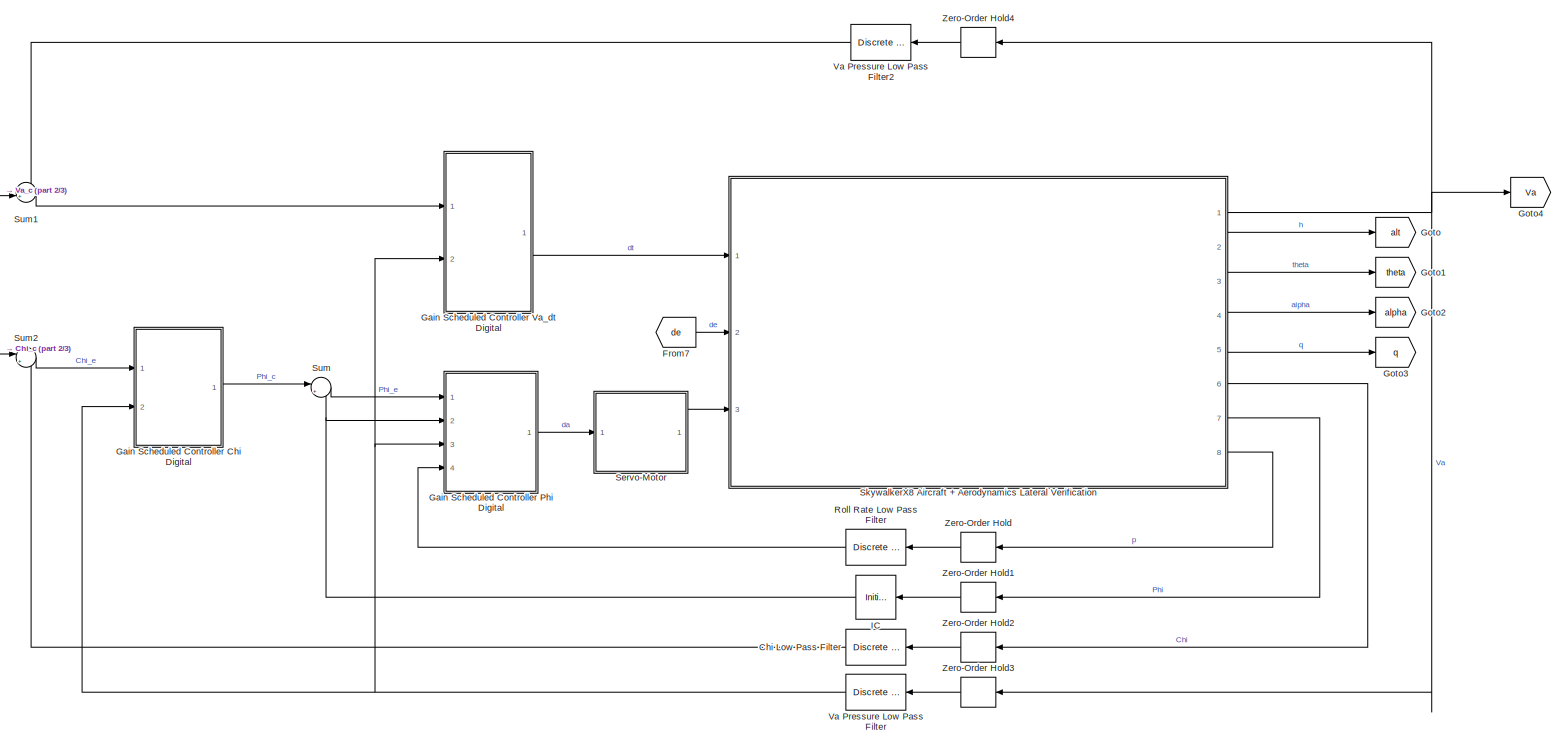
[diagram: root canvas - part 1/3, most of the canvas]
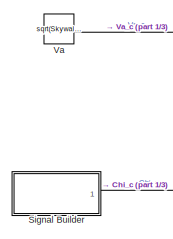
[diagram: root canvas - part 2/3, top left region]
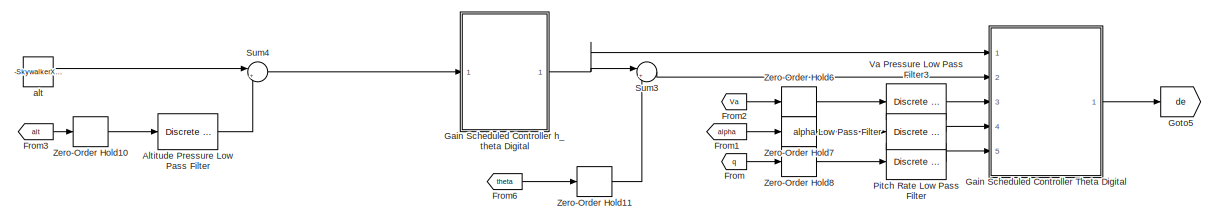
[diagram: root canvas - part 3/3, bottom center region]
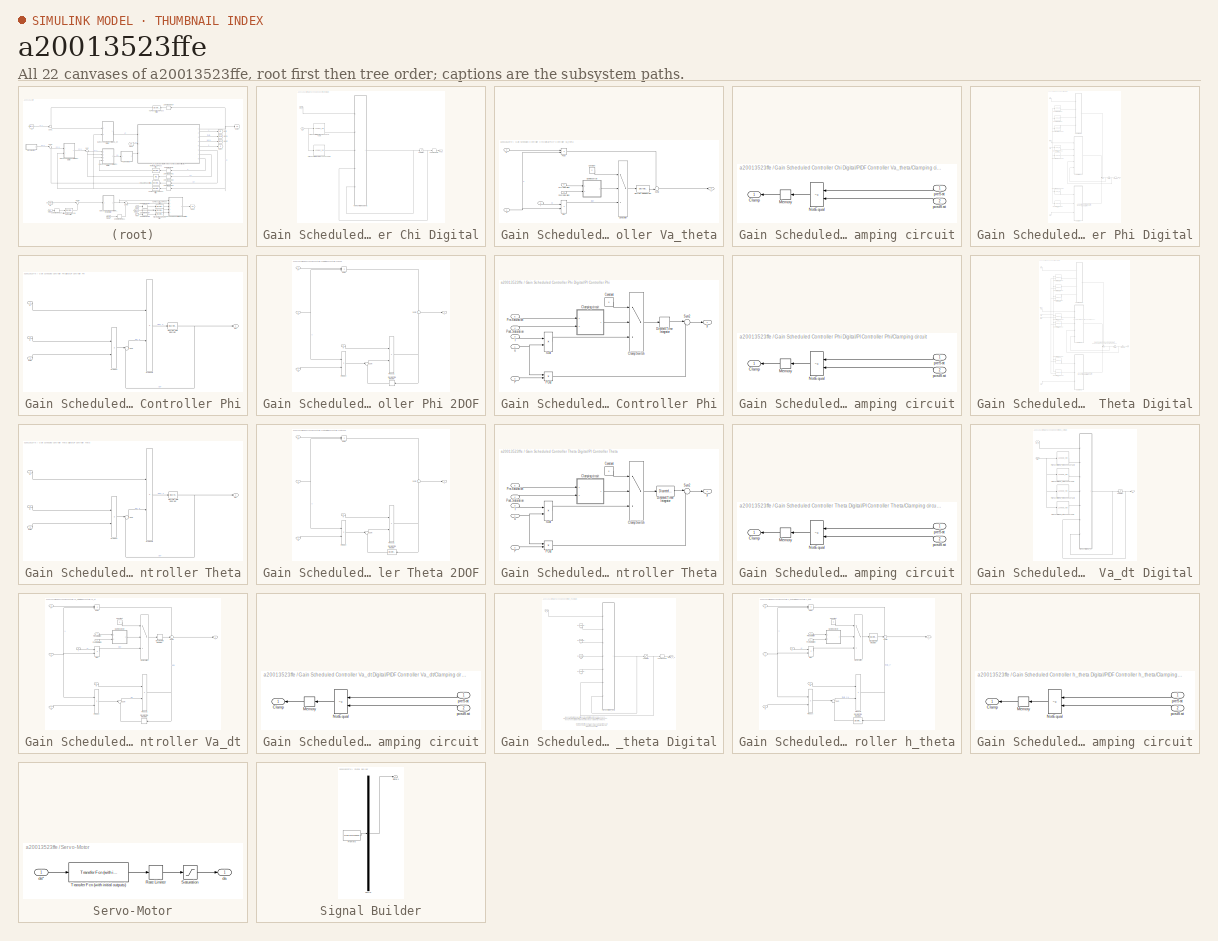
[diagram: thumbnail index - all 22 canvases of the model, root first then tree order]
MODEL slx_a20013523ffe
KIND model
CONFIG AbsTol = auto
CONFIG EnableMultiTasking = off
CONFIG FixedStep = 0.001
CONFIG MaxStep = auto
CONFIG MinStep = auto
CONFIG RelTol = 1e-3
CONFIG SampleTimeConstraint = Unconstrained
CONFIG Solver = FixedStepAuto
CONFIG SolverName = FixedStepAuto
CONFIG StartTime = 0.0
CONFIG StopTime = 30
BLOCK [Reference] Altitude Pressure Low Pass Filter  REF=simulink_extras/Additional
Discrete/Discrete
Transfer Fcn
(with initial outputs)
  Ports = [1, 1]
  SourceBlock = simulink_extras/Additional\nDiscrete/Discrete\nTransfer Fcn\n(with initial outputs)
  SourceProductBaseCode = SL
  SourceProductName = Simulink
  SourceType = Discrete Transfer Function with Initial Outputs
BLOCK [Reference] Chi Low Pass Filter  REF=simulink_extras/Additional
Discrete/Discrete
Transfer Fcn
(with initial outputs)
  Ports = [1, 1]
  SourceBlock = simulink_extras/Additional\nDiscrete/Discrete\nTransfer Fcn\n(with initial outputs)
  SourceProductBaseCode = SL
  SourceProductName = Simulink
  SourceType = Discrete Transfer Function with Initial Outputs
BLOCK [From] From
  GotoTag = q
BLOCK [From] From1
  GotoTag = alpha
BLOCK [From] From2
  GotoTag = Va
BLOCK [From] From3
  GotoTag = alt
BLOCK [From] From6
  GotoTag = theta
BLOCK [From] From7
  GotoTag = de
BLOCK [SubSystem] Gain Scheduled Controller Chi Digital
  Ports = [2, 1]
  RequestExecContextInheritance = off
BLOCK [Inport] Gain Scheduled Controller Chi Digital/Chi_e
  IconDisplay = Port number
BLOCK [Lookup_n-D] Gain Scheduled Controller Chi Digital/PIDF Controller Chi Ki 2D Lookup Table
  BreakpointsForDimension1 = SkywalkerX8.Control.Lateral.SchedulingVariables.VaArray
  BreakpointsForDimension2 = SkywalkerX8.Control.Longitudinal.SchedulingVariables.alphaArray
  InternalRulePriority = Speed
  NumberOfTableDimensions = 1
  Ports = [1, 1]
  RndMeth = Simplest
  Table = SkywalkerX8.Control.Lateral.ChiController.Digital.KiChi
BLOCK [Lookup_n-D] Gain Scheduled Controller Chi Digital/PIDF Controller Chi Kp 2D Lookup Table
  BreakpointsForDimension1 = SkywalkerX8.Control.Lateral.SchedulingVariables.VaArray
  BreakpointsForDimension2 = SkywalkerX8.Control.Longitudinal.SchedulingVariables.alphaArray
  InternalRulePriority = Speed
  NumberOfTableDimensions = 1
  Ports = [1, 1]
  RndMeth = Simplest
  Table = SkywalkerX8.Control.Lateral.ChiController.Digital.KpChi
BLOCK [SubSystem] Gain Scheduled Controller Chi Digital/PIDF Controller Va_theta
  Ports = [5, 1]
  RequestExecContextInheritance = off
BLOCK [Switch] Gain Scheduled Controller Chi Digital/PIDF Controller Va_theta/Clamp Switch
  Criteria = u2 ~= 0
  InputSameDT = off
  SaturateOnIntegerOverflow = off
BLOCK [SubSystem] Gain Scheduled Controller Chi Digital/PIDF Controller Va_theta/Clamping circuit
  Ports = [2, 1]
  RequestExecContextInheritance = off
BLOCK [Outport] Gain Scheduled Controller Chi Digital/PIDF Controller Va_theta/Clamping circuit/Clamp
  DisableCoverage = on
  IconDisplay = Port number
BLOCK [Memory] Gain Scheduled Controller Chi Digital/PIDF Controller Va_theta/Clamping circuit/Memory
  DisableCoverage = on
BLOCK [RelationalOperator] Gain Scheduled Controller Chi Digital/PIDF Controller Va_theta/Clamping circuit/NotEqual
  DisableCoverage = on
  Operator = ~=
  Ports = [2, 1]
BLOCK [Inport] Gain Scheduled Controller Chi Digital/PIDF Controller Va_theta/Clamping circuit/postSat
  DisableCoverage = on
  IconDisplay = Port number
  Port = 2
BLOCK [Inport] Gain Scheduled Controller Chi Digital/PIDF Controller Va_theta/Clamping circuit/preSat
  DisableCoverage = on
  IconDisplay = Port number
BLOCK [Constant] Gain Scheduled Controller Chi Digital/PIDF Controller Va_theta/Constant
  Value = 0
BLOCK [DiscreteIntegrator] Gain Scheduled Controller Chi Digital/PIDF Controller Va_theta/Discrete-Time Integrator
  ICPrevOutput = DiscIntNeverNeededParam
  ICPrevScaledInput = DiscIntNeverNeededParam
  InitialCondition = SkywalkerX8.InitialConditions.PhiThetaPsi(1)
  InitialConditionSetting = Auto
  IntegratorMethod = Integration: Trapezoidal
  Ports = [1, 1]
  SampleTime = SkywalkerX8.Control.Lateral.ChiController.Digital.SampleTime
BLOCK [Inport] Gain Scheduled Controller Chi Digital/PIDF Controller Va_theta/I
  IconDisplay = Port number
  Port = 3
BLOCK [Product] Gain Scheduled Controller Chi Digital/PIDF Controller Va_theta/IOut
  DisableCoverage = on
  InputSameDT = off
  OutDataTypeStr = Inherit: Inherit via internal rule
  Ports = [2, 1]
  RndMeth = Floor
  SaturateOnIntegerOverflow = off
BLOCK [Inport] Gain Scheduled Controller Chi Digital/PIDF Controller Va_theta/P
  IconDisplay = Port number
  Port = 2
BLOCK [Product] Gain Scheduled Controller Chi Digital/PIDF Controller Va_theta/POut
  InputSameDT = off
  OutDataTypeStr = Inherit: Inherit via internal rule
  Ports = [2, 1]
  RndMeth = Floor
  SaturateOnIntegerOverflow = off
BLOCK [Inport] Gain Scheduled Controller Chi Digital/PIDF Controller Va_theta/Post-Saturation
  IconDisplay = Port number
  Port = 4
BLOCK [Inport] Gain Scheduled Controller Chi Digital/PIDF Controller Va_theta/Pre-Saturation
  IconDisplay = Port number
  Port = 5
BLOCK [Sum] Gain Scheduled Controller Chi Digital/PIDF Controller Va_theta/Sum2
  IconShape = round
  InputSameDT = off
  Inputs = ++|
  OutDataTypeStr = Inherit: Inherit via internal rule
  Ports = [2, 1]
  SaturateOnIntegerOverflow = off
BLOCK [Inport] Gain Scheduled Controller Chi Digital/PIDF Controller Va_theta/u
  IconDisplay = Port number
BLOCK [Outport] Gain Scheduled Controller Chi Digital/PIDF Controller Va_theta/y
  IconDisplay = Port number
  InitialOutput = 0
BLOCK [Outport] Gain Scheduled Controller Chi Digital/Phi_c
  IconDisplay = Port number
BLOCK [Saturate] Gain Scheduled Controller Chi Digital/Saturation
  InputPortMap = u0
  LowerLimit = SkywalkerX8.Control.Lateral.ChiController.lowerSaturationPhiC
  Ports = [1, 1]
  UpperLimit = SkywalkerX8.Control.Lateral.ChiController.upperSaturationPhiC
BLOCK [Inport] Gain Scheduled Controller Chi Digital/Va
  IconDisplay = Port number
  Port = 2
BLOCK [ZeroOrderHold] Gain Scheduled Controller Chi Digital/Zero-Order Hold
  SampleTime = SkywalkerX8.Control.Lateral.ChiController.Digital.SampleTime
BLOCK [SubSystem] Gain Scheduled Controller Phi Digital
  Ports = [4, 1]
  RequestExecContextInheritance = off
BLOCK [SubSystem] Gain Scheduled Controller Phi Digital/DF Controller Phi
  Ports = [3, 1]
  RequestExecContextInheritance = off
BLOCK [Inport] Gain Scheduled Controller Phi Digital/DF Controller Phi/D
  IconDisplay = Port number
  Port = 2
BLOCK [DiscreteIntegrator] Gain Scheduled Controller Phi Digital/DF Controller Phi/Discrete-Time Integrator
  ICPrevOutput = DiscIntNeverNeededParam
  ICPrevScaledInput = DiscIntNeverNeededParam
  InitialConditionSetting = Auto
  IntegratorMethod = Integration: Trapezoidal
  Ports = [1, 1]
  SampleTime = SkywalkerX8.Control.Lateral.PhiController.Digital.SampleTime
BLOCK [Inport] Gain Scheduled Controller Phi Digital/DF Controller Phi/N
  IconDisplay = Port number
BLOCK [Product] Gain Scheduled Controller Phi Digital/DF Controller Phi/Product
  InputSameDT = off
  OutDataTypeStr = Inherit: Inherit via internal rule
  Ports = [2, 1]
  RndMeth = Floor
  SaturateOnIntegerOverflow = off
BLOCK [Product] Gain Scheduled Controller Phi Digital/DF Controller Phi/Product1
  InputSameDT = off
  OutDataTypeStr = Inherit: Inherit via internal rule
  Ports = [2, 1]
  RndMeth = Floor
  SaturateOnIntegerOverflow = off
BLOCK [Sum] Gain Scheduled Controller Phi Digital/DF Controller Phi/Sum
  IconShape = round
  InputSameDT = off
  Inputs = |+-
  OutDataTypeStr = Inherit: Inherit via internal rule
  Ports = [2, 1]
  SaturateOnIntegerOverflow = off
BLOCK [Outport] Gain Scheduled Controller Phi Digital/DF Controller Phi/da*
  IconDisplay = Port number
BLOCK [Inport] Gain Scheduled Controller Phi Digital/DF Controller Phi/du//dt
  IconDisplay = Port number
  Port = 3
BLOCK [SubSystem] Gain Scheduled Controller Phi Digital/PDF Controller Phi 2DOF
  Ports = [4, 1]
  RequestExecContextInheritance = off
BLOCK [Lookup_n-D] Gain Scheduled Controller Phi Digital/PDF Controller Phi 2DOF Kd 2D Lookup Table
  BreakpointsForDimension1 = SkywalkerX8.Control.Lateral.SchedulingVariables.VaArray
  BreakpointsForDimension2 = SkywalkerX8.Control.Longitudinal.SchedulingVariables.alphaArray
  InternalRulePriority = Speed
  NumberOfTableDimensions = 1
  Ports = [1, 1]
  RndMeth = Simplest
  Table = SkywalkerX8.Control.Lateral.PhiController.Digital.KdPhi2DOF
BLOCK [Lookup_n-D] Gain Scheduled Controller Phi Digital/PDF Controller Phi 2DOF Kp 2D Lookup Table
  BreakpointsForDimension1 = SkywalkerX8.Control.Lateral.SchedulingVariables.VaArray
  BreakpointsForDimension2 = SkywalkerX8.Control.Longitudinal.SchedulingVariables.alphaArray
  InternalRulePriority = Speed
  NumberOfTableDimensions = 1
  Ports = [1, 1]
  RndMeth = Simplest
  Table = SkywalkerX8.Control.Lateral.PhiController.Digital.KpPhi2DOF
BLOCK [Lookup_n-D] Gain Scheduled Controller Phi Digital/PDF Controller Phi 2DOF N 2D Lookup Table
  BreakpointsForDimension1 = SkywalkerX8.Control.Lateral.SchedulingVariables.VaArray
  BreakpointsForDimension2 = SkywalkerX8.Control.Longitudinal.SchedulingVariables.alphaArray
  InternalRulePriority = Speed
  NumberOfTableDimensions = 1
  Ports = [1, 1]
  RndMeth = Simplest
  Table = SkywalkerX8.Control.Lateral.PhiController.Digital.NPhi2DOF
BLOCK [Inport] Gain Scheduled Controller Phi Digital/PDF Controller Phi 2DOF/D
  IconDisplay = Port number
  Port = 3
BLOCK [DiscreteIntegrator] Gain Scheduled Controller Phi Digital/PDF Controller Phi 2DOF/Discrete-Time Integrator
  ICPrevOutput = DiscIntNeverNeededParam
  ICPrevScaledInput = DiscIntNeverNeededParam
  InitialConditionSetting = Auto
  Ports = [1, 1]
  SampleTime = SkywalkerX8.Control.Lateral.PhiController.Digital.SampleTime
BLOCK [Inport] Gain Scheduled Controller Phi Digital/PDF Controller Phi 2DOF/N
  IconDisplay = Port number
  Port = 4
BLOCK [Inport] Gain Scheduled Controller Phi Digital/PDF Controller Phi 2DOF/P
  IconDisplay = Port number
  Port = 2
BLOCK [Product] Gain Scheduled Controller Phi Digital/PDF Controller Phi 2DOF/POut
  InputSameDT = off
  OutDataTypeStr = Inherit: Inherit via internal rule
  Ports = [2, 1]
  RndMeth = Floor
  SaturateOnIntegerOverflow = off
BLOCK [Product] Gain Scheduled Controller Phi Digital/PDF Controller Phi 2DOF/Product
  InputSameDT = off
  OutDataTypeStr = Inherit: Inherit via internal rule
  Ports = [2, 1]
  RndMeth = Floor
  SaturateOnIntegerOverflow = off
BLOCK [Product] Gain Scheduled Controller Phi Digital/PDF Controller Phi 2DOF/Product1
  InputSameDT = off
  OutDataTypeStr = Inherit: Inherit via internal rule
  Ports = [2, 1]
  RndMeth = Floor
  SaturateOnIntegerOverflow = off
BLOCK [Sum] Gain Scheduled Controller Phi Digital/PDF Controller Phi 2DOF/Sum
  IconShape = round
  InputSameDT = off
  Inputs = |+-
  OutDataTypeStr = Inherit: Inherit via internal rule
  Ports = [2, 1]
  SaturateOnIntegerOverflow = off
BLOCK [Sum] Gain Scheduled Controller Phi Digital/PDF Controller Phi 2DOF/Sum2
  IconShape = round
  InputSameDT = off
  OutDataTypeStr = Inherit: Inherit via internal rule
  Ports = [2, 1]
  SaturateOnIntegerOverflow = off
BLOCK [Inport] Gain Scheduled Controller Phi Digital/PDF Controller Phi 2DOF/u
  IconDisplay = Port number
BLOCK [Outport] Gain Scheduled Controller Phi Digital/PDF Controller Phi 2DOF/y
  IconDisplay = Port number
  InitialOutput = 0
BLOCK [SubSystem] Gain Scheduled Controller Phi Digital/PI Controller Phi
  Ports = [5, 1]
  RequestExecContextInheritance = off
BLOCK [Switch] Gain Scheduled Controller Phi Digital/PI Controller Phi/Clamp Switch
  Criteria = u2 ~= 0
  InputSameDT = off
  SaturateOnIntegerOverflow = off
BLOCK [SubSystem] Gain Scheduled Controller Phi Digital/PI Controller Phi/Clamping circuit
  Ports = [2, 1]
  RequestExecContextInheritance = off
BLOCK [Outport] Gain Scheduled Controller Phi Digital/PI Controller Phi/Clamping circuit/Clamp
  DisableCoverage = on
  IconDisplay = Port number
BLOCK [Memory] Gain Scheduled Controller Phi Digital/PI Controller Phi/Clamping circuit/Memory
  DisableCoverage = on
BLOCK [RelationalOperator] Gain Scheduled Controller Phi Digital/PI Controller Phi/Clamping circuit/NotEqual
  DisableCoverage = on
  Operator = ~=
  Ports = [2, 1]
BLOCK [Inport] Gain Scheduled Controller Phi Digital/PI Controller Phi/Clamping circuit/postSat
  DisableCoverage = on
  IconDisplay = Port number
  Port = 2
BLOCK [Inport] Gain Scheduled Controller Phi Digital/PI Controller Phi/Clamping circuit/preSat
  DisableCoverage = on
  IconDisplay = Port number
BLOCK [Constant] Gain Scheduled Controller Phi Digital/PI Controller Phi/Constant
  Value = 0
BLOCK [DiscreteIntegrator] Gain Scheduled Controller Phi Digital/PI Controller Phi/Discrete-Time Integrator
  ICPrevOutput = DiscIntNeverNeededParam
  ICPrevScaledInput = DiscIntNeverNeededParam
  InitialCondition = SkywalkerX8.InitialConditions.da
  InitialConditionSetting = Auto
  IntegratorMethod = Integration: Trapezoidal
  Ports = [1, 1]
  SampleTime = SkywalkerX8.Control.Lateral.PhiController.Digital.SampleTime
BLOCK [Inport] Gain Scheduled Controller Phi Digital/PI Controller Phi/I
  IconDisplay = Port number
  Port = 3
BLOCK [Product] Gain Scheduled Controller Phi Digital/PI Controller Phi/IOut
  DisableCoverage = on
  InputSameDT = off
  OutDataTypeStr = Inherit: Inherit via internal rule
  Ports = [2, 1]
  RndMeth = Floor
  SaturateOnIntegerOverflow = off
BLOCK [Inport] Gain Scheduled Controller Phi Digital/PI Controller Phi/P
  IconDisplay = Port number
  Port = 2
BLOCK [Product] Gain Scheduled Controller Phi Digital/PI Controller Phi/POut
  InputSameDT = off
  OutDataTypeStr = Inherit: Inherit via internal rule
  Ports = [2, 1]
  RndMeth = Floor
  SaturateOnIntegerOverflow = off
BLOCK [Inport] Gain Scheduled Controller Phi Digital/PI Controller Phi/Post-Saturation
  IconDisplay = Port number
  Port = 4
BLOCK [Inport] Gain Scheduled Controller Phi Digital/PI Controller Phi/Pre-Saturation
  IconDisplay = Port number
  Port = 5
BLOCK [Sum] Gain Scheduled Controller Phi Digital/PI Controller Phi/Sum2
  IconShape = round
  InputSameDT = off
  Inputs = |++
  OutDataTypeStr = Inherit: Inherit via internal rule
  Ports = [2, 1]
  SaturateOnIntegerOverflow = off
BLOCK [Inport] Gain Scheduled Controller Phi Digital/PI Controller Phi/u
  IconDisplay = Port number
BLOCK [Outport] Gain Scheduled Controller Phi Digital/PI Controller Phi/y
  IconDisplay = Port number
  InitialOutput = 0
BLOCK [Lookup_n-D] Gain Scheduled Controller Phi Digital/PIDF Controller Phi Kd 2D Lookup Table
  BreakpointsForDimension1 = SkywalkerX8.Control.Lateral.SchedulingVariables.VaArray
  BreakpointsForDimension2 = SkywalkerX8.Control.Longitudinal.SchedulingVariables.alphaArray
  InternalRulePriority = Speed
  NumberOfTableDimensions = 1
  Ports = [1, 1]
  RndMeth = Simplest
  Table = SkywalkerX8.Control.Lateral.PhiController.Digital.KdPhi
BLOCK [Lookup_n-D] Gain Scheduled Controller Phi Digital/PIDF Controller Phi Ki 2D Lookup Table
  BreakpointsForDimension1 = SkywalkerX8.Control.Lateral.SchedulingVariables.VaArray
  BreakpointsForDimension2 = SkywalkerX8.Control.Longitudinal.SchedulingVariables.alphaArray
  InternalRulePriority = Speed
  NumberOfTableDimensions = 1
  Ports = [1, 1]
  RndMeth = Simplest
  Table = SkywalkerX8.Control.Lateral.PhiController.Digital.KiPhi
BLOCK [Lookup_n-D] Gain Scheduled Controller Phi Digital/PIDF Controller Phi Kp 2D Lookup Table
  BreakpointsForDimension1 = SkywalkerX8.Control.Lateral.SchedulingVariables.VaArray
  BreakpointsForDimension2 = SkywalkerX8.Control.Longitudinal.SchedulingVariables.alphaArray
  InternalRulePriority = Speed
  NumberOfTableDimensions = 1
  Ports = [1, 1]
  RndMeth = Simplest
  Table = SkywalkerX8.Control.Lateral.PhiController.Digital.KpPhi
BLOCK [Lookup_n-D] Gain Scheduled Controller Phi Digital/PIDF Controller Phi N 2D Lookup Table
  BreakpointsForDimension1 = SkywalkerX8.Control.Lateral.SchedulingVariables.VaArray
  BreakpointsForDimension2 = SkywalkerX8.Control.Longitudinal.SchedulingVariables.alphaArray
  InternalRulePriority = Speed
  NumberOfTableDimensions = 1
  Ports = [1, 1]
  RndMeth = Simplest
  Table = SkywalkerX8.Control.Lateral.PhiController.Digital.NPhi
BLOCK [Inport] Gain Scheduled Controller Phi Digital/Phi
  IconDisplay = Port number
  Port = 2
BLOCK [Inport] Gain Scheduled Controller Phi Digital/Phi_e
  IconDisplay = Port number
BLOCK [Saturate] Gain Scheduled Controller Phi Digital/Saturation
  InputPortMap = u0
  LowerLimit = SkywalkerX8.Control.Lateral.PhiController.lowerSaturationDa
  Ports = [1, 1]
  UpperLimit = SkywalkerX8.Control.Lateral.PhiController.upperSaturationDa
BLOCK [Sum] Gain Scheduled Controller Phi Digital/Sum1
  IconShape = round
  InputSameDT = off
  Inputs = +++|
  OutDataTypeStr = Inherit: Inherit via internal rule
  Ports = [3, 1]
  SaturateOnIntegerOverflow = off
BLOCK [Inport] Gain Scheduled Controller Phi Digital/Va
  IconDisplay = Port number
  Port = 3
BLOCK [ZeroOrderHold] Gain Scheduled Controller Phi Digital/Zero-Order Hold
  SampleTime = SkywalkerX8.Control.Lateral.PhiController.Digital.SampleTime
BLOCK [Outport] Gain Scheduled Controller Phi Digital/da
  IconDisplay = Port number
BLOCK [Inport] Gain Scheduled Controller Phi Digital/p
  IconDisplay = Port number
  Port = 4
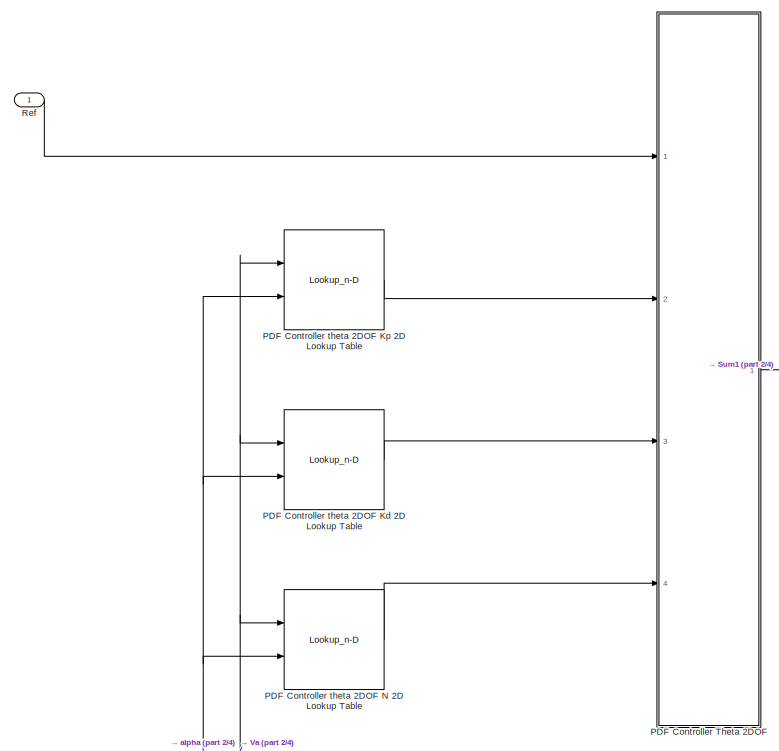
[diagram: Gain Scheduled Controller Theta Digital - part 1/4, top left region]
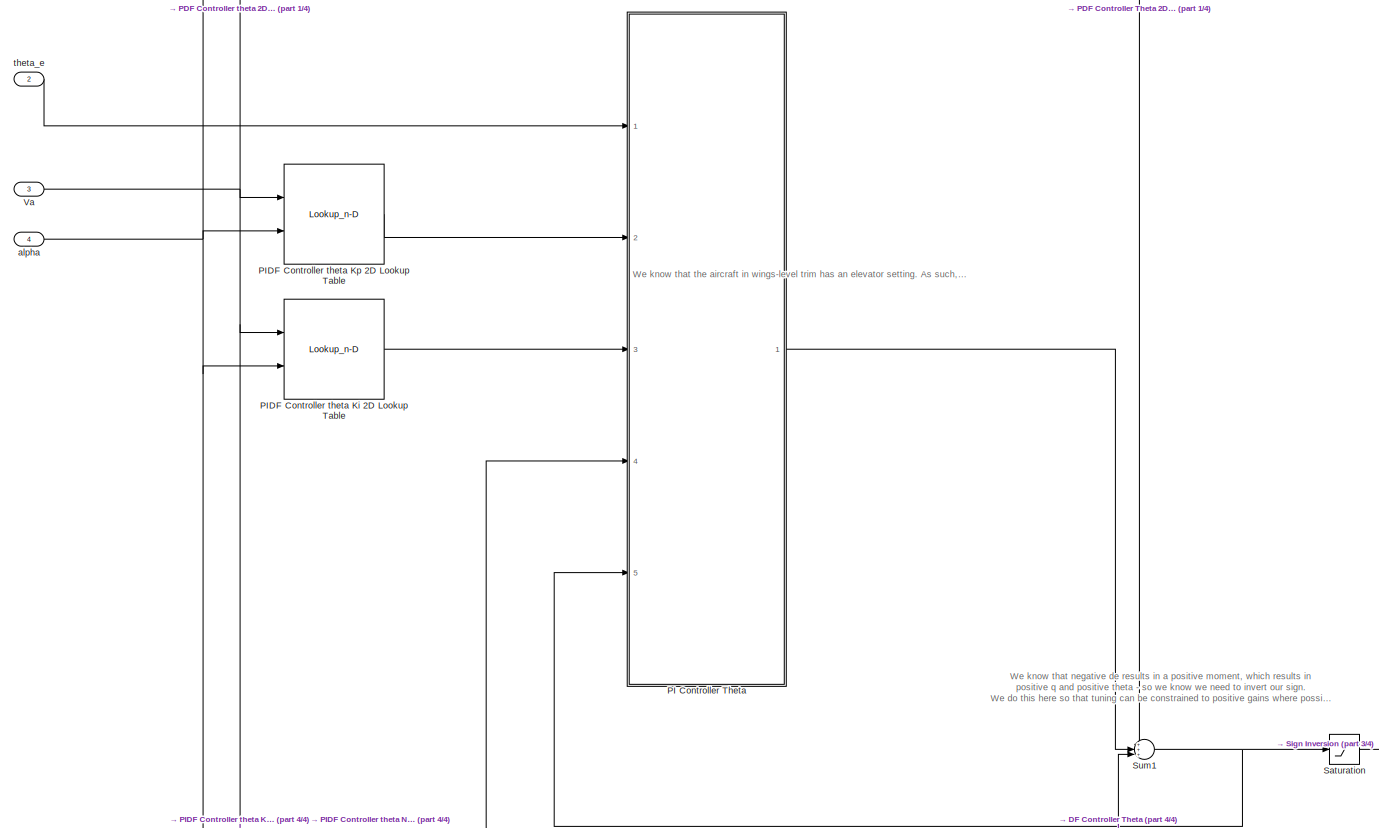
[diagram: Gain Scheduled Controller Theta Digital - part 2/4, full width, middle band]
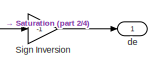
[diagram: Gain Scheduled Controller Theta Digital - part 3/4, middle right region]
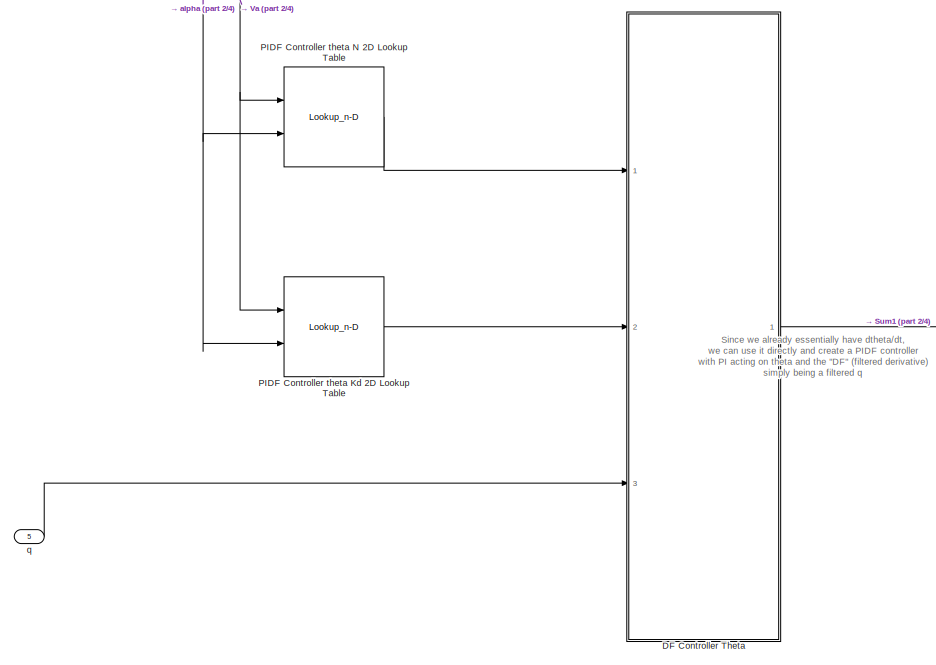
[diagram: Gain Scheduled Controller Theta Digital - part 4/4, bottom left region]
BLOCK [SubSystem] Gain Scheduled Controller Theta Digital
  Ports = [5, 1]
  RequestExecContextInheritance = off
BLOCK [SubSystem] Gain Scheduled Controller Theta Digital/DF Controller Theta
  Ports = [3, 1]
  RequestExecContextInheritance = off
BLOCK [Inport] Gain Scheduled Controller Theta Digital/DF Controller Theta/D
  IconDisplay = Port number
  Port = 2
BLOCK [DiscreteIntegrator] Gain Scheduled Controller Theta Digital/DF Controller Theta/Discrete-Time Integrator
  ICPrevOutput = DiscIntNeverNeededParam
  ICPrevScaledInput = DiscIntNeverNeededParam
  InitialConditionSetting = Auto
  IntegratorMethod = Integration: Trapezoidal
  Ports = [1, 1]
  SampleTime = SkywalkerX8.Control.Longitudinal.thetaController.Digital.SampleTime
BLOCK [Inport] Gain Scheduled Controller Theta Digital/DF Controller Theta/N
  IconDisplay = Port number
BLOCK [Product] Gain Scheduled Controller Theta Digital/DF Controller Theta/Product
  InputSameDT = off
  OutDataTypeStr = Inherit: Inherit via internal rule
  Ports = [2, 1]
  RndMeth = Floor
  SaturateOnIntegerOverflow = off
BLOCK [Product] Gain Scheduled Controller Theta Digital/DF Controller Theta/Product1
  InputSameDT = off
  OutDataTypeStr = Inherit: Inherit via internal rule
  Ports = [2, 1]
  RndMeth = Floor
  SaturateOnIntegerOverflow = off
BLOCK [Sum] Gain Scheduled Controller Theta Digital/DF Controller Theta/Sum
  IconShape = round
  InputSameDT = off
  Inputs = |+-
  OutDataTypeStr = Inherit: Inherit via internal rule
  Ports = [2, 1]
  SaturateOnIntegerOverflow = off
BLOCK [Outport] Gain Scheduled Controller Theta Digital/DF Controller Theta/de*
  IconDisplay = Port number
BLOCK [Inport] Gain Scheduled Controller Theta Digital/DF Controller Theta/du//dt
  IconDisplay = Port number
  Port = 3
BLOCK [SubSystem] Gain Scheduled Controller Theta Digital/PDF Controller Theta 2DOF
  Ports = [4, 1]
  RequestExecContextInheritance = off
BLOCK [Inport] Gain Scheduled Controller Theta Digital/PDF Controller Theta 2DOF/D
  IconDisplay = Port number
  Port = 3
BLOCK [DiscreteIntegrator] Gain Scheduled Controller Theta Digital/PDF Controller Theta 2DOF/Discrete-Time Integrator
  ICPrevOutput = DiscIntNeverNeededParam
  ICPrevScaledInput = DiscIntNeverNeededParam
  InitialConditionSetting = Auto
  Ports = [1, 1]
  SampleTime = SkywalkerX8.Control.Longitudinal.thetaController.Digital.SampleTime
BLOCK [Inport] Gain Scheduled Controller Theta Digital/PDF Controller Theta 2DOF/N
  IconDisplay = Port number
  Port = 4
BLOCK [Inport] Gain Scheduled Controller Theta Digital/PDF Controller Theta 2DOF/P
  IconDisplay = Port number
  Port = 2
BLOCK [Product] Gain Scheduled Controller Theta Digital/PDF Controller Theta 2DOF/POut
  InputSameDT = off
  OutDataTypeStr = Inherit: Inherit via internal rule
  Ports = [2, 1]
  RndMeth = Floor
  SaturateOnIntegerOverflow = off
BLOCK [Product] Gain Scheduled Controller Theta Digital/PDF Controller Theta 2DOF/Product
  InputSameDT = off
  OutDataTypeStr = Inherit: Inherit via internal rule
  Ports = [2, 1]
  RndMeth = Floor
  SaturateOnIntegerOverflow = off
BLOCK [Product] Gain Scheduled Controller Theta Digital/PDF Controller Theta 2DOF/Product1
  InputSameDT = off
  OutDataTypeStr = Inherit: Inherit via internal rule
  Ports = [2, 1]
  RndMeth = Floor
  SaturateOnIntegerOverflow = off
BLOCK [Sum] Gain Scheduled Controller Theta Digital/PDF Controller Theta 2DOF/Sum
  IconShape = round
  InputSameDT = off
  Inputs = |+-
  OutDataTypeStr = Inherit: Inherit via internal rule
  Ports = [2, 1]
  SaturateOnIntegerOverflow = off
BLOCK [Sum] Gain Scheduled Controller Theta Digital/PDF Controller Theta 2DOF/Sum2
  IconShape = round
  InputSameDT = off
  OutDataTypeStr = Inherit: Inherit via internal rule
  Ports = [2, 1]
  SaturateOnIntegerOverflow = off
BLOCK [Inport] Gain Scheduled Controller Theta Digital/PDF Controller Theta 2DOF/u
  IconDisplay = Port number
BLOCK [Outport] Gain Scheduled Controller Theta Digital/PDF Controller Theta 2DOF/y
  IconDisplay = Port number
  InitialOutput = 0
BLOCK [Lookup_n-D] Gain Scheduled Controller Theta Digital/PDF Controller theta 2DOF Kd 2D Lookup Table
  BreakpointsForDimension1 = SkywalkerX8.Control.Longitudinal.SchedulingVariables.VaArray
  BreakpointsForDimension2 = SkywalkerX8.Control.Longitudinal.SchedulingVariables.alphaArray
  InternalRulePriority = Speed
  Ports = [2, 1]
  RndMeth = Simplest
  Table = SkywalkerX8.Control.Longitudinal.thetaController.Digital.KdTheta2DOF
BLOCK [Lookup_n-D] Gain Scheduled Controller Theta Digital/PDF Controller theta 2DOF Kp 2D Lookup Table
  BreakpointsForDimension1 = SkywalkerX8.Control.Longitudinal.SchedulingVariables.VaArray
  BreakpointsForDimension2 = SkywalkerX8.Control.Longitudinal.SchedulingVariables.alphaArray
  InternalRulePriority = Speed
  Ports = [2, 1]
  RndMeth = Simplest
  Table = SkywalkerX8.Control.Longitudinal.thetaController.Digital.KpTheta2DOF
BLOCK [Lookup_n-D] Gain Scheduled Controller Theta Digital/PDF Controller theta 2DOF N 2D Lookup Table
  BreakpointsForDimension1 = SkywalkerX8.Control.Longitudinal.SchedulingVariables.VaArray
  BreakpointsForDimension2 = SkywalkerX8.Control.Longitudinal.SchedulingVariables.alphaArray
  InternalRulePriority = Speed
  Ports = [2, 1]
  RndMeth = Simplest
  Table = SkywalkerX8.Control.Longitudinal.thetaController.Digital.NTheta2DOF
BLOCK [SubSystem] Gain Scheduled Controller Theta Digital/PI Controller Theta
  Ports = [5, 1]
  RequestExecContextInheritance = off
BLOCK [Switch] Gain Scheduled Controller Theta Digital/PI Controller Theta/Clamp Switch
  Criteria = u2 ~= 0
  InputSameDT = off
  SaturateOnIntegerOverflow = off
BLOCK [SubSystem] Gain Scheduled Controller Theta Digital/PI Controller Theta/Clamping circuit
  Ports = [2, 1]
  RequestExecContextInheritance = off
BLOCK [Outport] Gain Scheduled Controller Theta Digital/PI Controller Theta/Clamping circuit/Clamp
  DisableCoverage = on
  IconDisplay = Port number
BLOCK [Memory] Gain Scheduled Controller Theta Digital/PI Controller Theta/Clamping circuit/Memory
  DisableCoverage = on
BLOCK [RelationalOperator] Gain Scheduled Controller Theta Digital/PI Controller Theta/Clamping circuit/NotEqual
  DisableCoverage = on
  Operator = ~=
  Ports = [2, 1]
BLOCK [Inport] Gain Scheduled Controller Theta Digital/PI Controller Theta/Clamping circuit/postSat
  DisableCoverage = on
  IconDisplay = Port number
  Port = 2
BLOCK [Inport] Gain Scheduled Controller Theta Digital/PI Controller Theta/Clamping circuit/preSat
  DisableCoverage = on
  IconDisplay = Port number
BLOCK [Constant] Gain Scheduled Controller Theta Digital/PI Controller Theta/Constant
  Value = 0
BLOCK [DiscreteIntegrator] Gain Scheduled Controller Theta Digital/PI Controller Theta/Discrete-Time Integrator
  ICPrevOutput = DiscIntNeverNeededParam
  ICPrevScaledInput = DiscIntNeverNeededParam
  InitialCondition = SkywalkerX8.InitialConditions.ThetaController.Integrator
  InitialConditionSetting = Auto
  IntegratorMethod = Integration: Trapezoidal
  Ports = [1, 1]
  SampleTime = SkywalkerX8.Control.Longitudinal.thetaController.Digital.SampleTime
BLOCK [Inport] Gain Scheduled Controller Theta Digital/PI Controller Theta/I
  IconDisplay = Port number
  Port = 3
BLOCK [Product] Gain Scheduled Controller Theta Digital/PI Controller Theta/IOut
  DisableCoverage = on
  InputSameDT = off
  OutDataTypeStr = Inherit: Inherit via internal rule
  Ports = [2, 1]
  RndMeth = Floor
  SaturateOnIntegerOverflow = off
BLOCK [Inport] Gain Scheduled Controller Theta Digital/PI Controller Theta/P
  IconDisplay = Port number
  Port = 2
BLOCK [Product] Gain Scheduled Controller Theta Digital/PI Controller Theta/POut
  InputSameDT = off
  OutDataTypeStr = Inherit: Inherit via internal rule
  Ports = [2, 1]
  RndMeth = Floor
  SaturateOnIntegerOverflow = off
BLOCK [Inport] Gain Scheduled Controller Theta Digital/PI Controller Theta/Post-Saturation
  IconDisplay = Port number
  Port = 4
BLOCK [Inport] Gain Scheduled Controller Theta Digital/PI Controller Theta/Pre-Saturation
  IconDisplay = Port number
  Port = 5
BLOCK [Sum] Gain Scheduled Controller Theta Digital/PI Controller Theta/Sum2
  IconShape = round
  InputSameDT = off
  Inputs = |++
  OutDataTypeStr = Inherit: Inherit via internal rule
  Ports = [2, 1]
  SaturateOnIntegerOverflow = off
BLOCK [Inport] Gain Scheduled Controller Theta Digital/PI Controller Theta/u
  IconDisplay = Port number
BLOCK [Outport] Gain Scheduled Controller Theta Digital/PI Controller Theta/y
  IconDisplay = Port number
  InitialOutput = 0
BLOCK [Lookup_n-D] Gain Scheduled Controller Theta Digital/PIDF Controller theta Kd 2D Lookup Table
  BreakpointsForDimension1 = SkywalkerX8.Control.Longitudinal.SchedulingVariables.VaArray
  BreakpointsForDimension2 = SkywalkerX8.Control.Longitudinal.SchedulingVariables.alphaArray
  InternalRulePriority = Speed
  Ports = [2, 1]
  RndMeth = Simplest
  Table = SkywalkerX8.Control.Longitudinal.thetaController.Digital.KdTheta
BLOCK [Lookup_n-D] Gain Scheduled Controller Theta Digital/PIDF Controller theta Ki 2D Lookup Table
  BreakpointsForDimension1 = SkywalkerX8.Control.Longitudinal.SchedulingVariables.VaArray
  BreakpointsForDimension2 = SkywalkerX8.Control.Longitudinal.SchedulingVariables.alphaArray
  InternalRulePriority = Speed
  Ports = [2, 1]
  RndMeth = Simplest
  Table = SkywalkerX8.Control.Longitudinal.thetaController.Digital.KiTheta
BLOCK [Lookup_n-D] Gain Scheduled Controller Theta Digital/PIDF Controller theta Kp 2D Lookup Table
  BreakpointsForDimension1 = SkywalkerX8.Control.Longitudinal.SchedulingVariables.VaArray
  BreakpointsForDimension2 = SkywalkerX8.Control.Longitudinal.SchedulingVariables.alphaArray
  InternalRulePriority = Speed
  Ports = [2, 1]
  RndMeth = Simplest
  Table = SkywalkerX8.Control.Longitudinal.thetaController.Digital.KpTheta
BLOCK [Lookup_n-D] Gain Scheduled Controller Theta Digital/PIDF Controller theta N 2D Lookup Table
  BreakpointsForDimension1 = SkywalkerX8.Control.Longitudinal.SchedulingVariables.VaArray
  BreakpointsForDimension2 = SkywalkerX8.Control.Longitudinal.SchedulingVariables.alphaArray
  InternalRulePriority = Speed
  Ports = [2, 1]
  RndMeth = Simplest
  Table = SkywalkerX8.Control.Longitudinal.thetaController.Digital.NTheta
BLOCK [Inport] Gain Scheduled Controller Theta Digital/Ref
  IconDisplay = Port number
BLOCK [Saturate] Gain Scheduled Controller Theta Digital/Saturation
  InputPortMap = u0
  LowerLimit = SkywalkerX8.Control.Longitudinal.thetaController.Digital.lowerSaturationNegativeDe
  Ports = [1, 1]
  UpperLimit = SkywalkerX8.Control.Longitudinal.thetaController.Digital.upperSaturationNegativeDe
BLOCK [Gain] Gain Scheduled Controller Theta Digital/Sign Inversion
  Gain = -1
  OutDataTypeStr = Inherit: Inherit via internal rule
  ParamDataTypeStr = Inherit: Inherit via internal rule
  SaturateOnIntegerOverflow = off
BLOCK [Sum] Gain Scheduled Controller Theta Digital/Sum1
  IconShape = round
  InputSameDT = off
  Inputs = +++|
  OutDataTypeStr = Inherit: Inherit via internal rule
  Ports = [3, 1]
  SaturateOnIntegerOverflow = off
BLOCK [Inport] Gain Scheduled Controller Theta Digital/Va
  IconDisplay = Port number
  Port = 3
BLOCK [Inport] Gain Scheduled Controller Theta Digital/alpha
  IconDisplay = Port number
  Port = 4
BLOCK [Outport] Gain Scheduled Controller Theta Digital/de
  IconDisplay = Port number
BLOCK [Inport] Gain Scheduled Controller Theta Digital/q
  IconDisplay = Port number
  Port = 5
BLOCK [Inport] Gain Scheduled Controller Theta Digital/theta_e
  IconDisplay = Port number
  Port = 2
BLOCK [SubSystem] Gain Scheduled Controller Va_dt Digital
  Ports = [2, 1]
  RequestExecContextInheritance = off
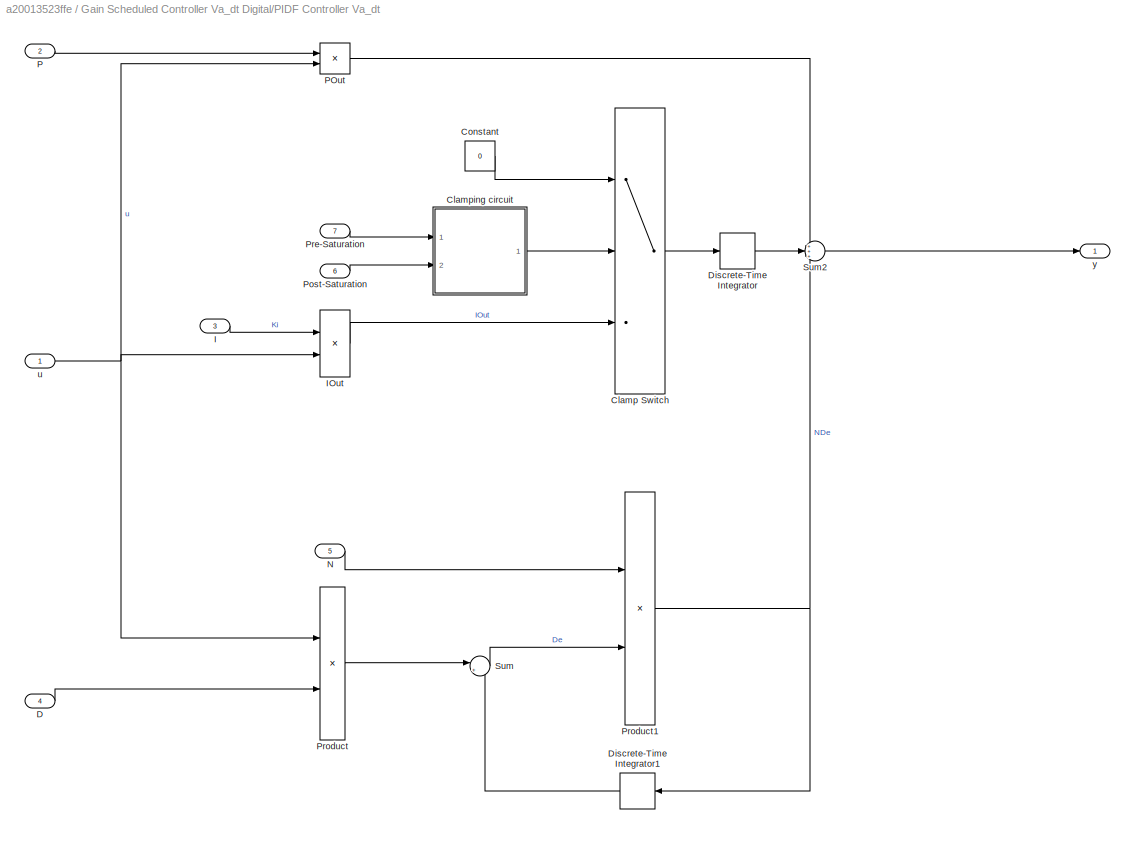
BLOCK [SubSystem] Gain Scheduled Controller Va_dt Digital/PIDF Controller Va_dt
  Ports = [7, 1]
  RequestExecContextInheritance = off
BLOCK [Lookup_n-D] Gain Scheduled Controller Va_dt Digital/PIDF Controller Va_dt Kd Lookup Table
  BreakpointsForDimension1 = SkywalkerX8.Control.Longitudinal.SchedulingVariables.VaArray
  BreakpointsForDimension2 = [1 2 3 4 5]
  InternalRulePriority = Speed
  NumberOfTableDimensions = 1
  Ports = [1, 1]
  RndMeth = Simplest
  Table = SkywalkerX8.Control.Longitudinal.VaDtController.Digital.KdVaDt
BLOCK [Lookup_n-D] Gain Scheduled Controller Va_dt Digital/PIDF Controller Va_dt Ki Lookup Table
  BreakpointsForDimension1 = SkywalkerX8.Control.Longitudinal.SchedulingVariables.VaArray
  BreakpointsForDimension2 = [1 2 3 4 5]
  InternalRulePriority = Speed
  NumberOfTableDimensions = 1
  Ports = [1, 1]
  RndMeth = Simplest
  Table = SkywalkerX8.Control.Longitudinal.VaDtController.Digital.KiVaDt
BLOCK [Lookup_n-D] Gain Scheduled Controller Va_dt Digital/PIDF Controller Va_dt Kp Lookup Table
  BreakpointsForDimension1 = SkywalkerX8.Control.Longitudinal.SchedulingVariables.VaArray
  BreakpointsForDimension2 = [1 2 3 4 5]
  InternalRulePriority = Speed
  NumberOfTableDimensions = 1
  Ports = [1, 1]
  RndMeth = Simplest
  Table = SkywalkerX8.Control.Longitudinal.VaDtController.Digital.KpVaDt
BLOCK [Lookup_n-D] Gain Scheduled Controller Va_dt Digital/PIDF Controller Va_dt N Lookup Table
  BreakpointsForDimension1 = SkywalkerX8.Control.Longitudinal.SchedulingVariables.VaArray
  BreakpointsForDimension2 = [1 2 3 4 5]
  InternalRulePriority = Speed
  NumberOfTableDimensions = 1
  Ports = [1, 1]
  RndMeth = Simplest
  Table = SkywalkerX8.Control.Longitudinal.VaDtController.Digital.NVaDt
BLOCK [Switch] Gain Scheduled Controller Va_dt Digital/PIDF Controller Va_dt/Clamp Switch
  Criteria = u2 ~= 0
  InputSameDT = off
  SaturateOnIntegerOverflow = off
BLOCK [SubSystem] Gain Scheduled Controller Va_dt Digital/PIDF Controller Va_dt/Clamping circuit
  Ports = [2, 1]
  RequestExecContextInheritance = off
BLOCK [Outport] Gain Scheduled Controller Va_dt Digital/PIDF Controller Va_dt/Clamping circuit/Clamp
  DisableCoverage = on
  IconDisplay = Port number
BLOCK [Memory] Gain Scheduled Controller Va_dt Digital/PIDF Controller Va_dt/Clamping circuit/Memory
  DisableCoverage = on
BLOCK [RelationalOperator] Gain Scheduled Controller Va_dt Digital/PIDF Controller Va_dt/Clamping circuit/NotEqual
  DisableCoverage = on
  Operator = ~=
  Ports = [2, 1]
BLOCK [Inport] Gain Scheduled Controller Va_dt Digital/PIDF Controller Va_dt/Clamping circuit/postSat
  DisableCoverage = on
  IconDisplay = Port number
  Port = 2
BLOCK [Inport] Gain Scheduled Controller Va_dt Digital/PIDF Controller Va_dt/Clamping circuit/preSat
  DisableCoverage = on
  IconDisplay = Port number
BLOCK [Constant] Gain Scheduled Controller Va_dt Digital/PIDF Controller Va_dt/Constant
  Value = 0
BLOCK [Inport] Gain Scheduled Controller Va_dt Digital/PIDF Controller Va_dt/D
  IconDisplay = Port number
  Port = 4
BLOCK [DiscreteIntegrator] Gain Scheduled Controller Va_dt Digital/PIDF Controller Va_dt/Discrete-Time Integrator
  ICPrevOutput = DiscIntNeverNeededParam
  ICPrevScaledInput = DiscIntNeverNeededParam
  InitialCondition = SkywalkerX8.InitialConditions.dt
  InitialConditionSetting = Auto
  IntegratorMethod = Accumulation: Trapezoidal
  Ports = [1, 1]
  SampleTime = SkywalkerX8.Control.Longitudinal.VaDtController.Digital.SampleTime
BLOCK [DiscreteIntegrator] Gain Scheduled Controller Va_dt Digital/PIDF Controller Va_dt/Discrete-Time Integrator1
  ICPrevOutput = DiscIntNeverNeededParam
  ICPrevScaledInput = DiscIntNeverNeededParam
  InitialConditionSetting = Auto
  Ports = [1, 1]
  SampleTime = SkywalkerX8.Control.Longitudinal.VaDtController.Digital.SampleTime
BLOCK [Inport] Gain Scheduled Controller Va_dt Digital/PIDF Controller Va_dt/I
  IconDisplay = Port number
  Port = 3
BLOCK [Product] Gain Scheduled Controller Va_dt Digital/PIDF Controller Va_dt/IOut
  DisableCoverage = on
  InputSameDT = off
  OutDataTypeStr = Inherit: Inherit via internal rule
  Ports = [2, 1]
  RndMeth = Floor
  SaturateOnIntegerOverflow = off
BLOCK [Inport] Gain Scheduled Controller Va_dt Digital/PIDF Controller Va_dt/N
  IconDisplay = Port number
  Port = 5
BLOCK [Inport] Gain Scheduled Controller Va_dt Digital/PIDF Controller Va_dt/P
  IconDisplay = Port number
  Port = 2
BLOCK [Product] Gain Scheduled Controller Va_dt Digital/PIDF Controller Va_dt/POut
  InputSameDT = off
  OutDataTypeStr = Inherit: Inherit via internal rule
  Ports = [2, 1]
  RndMeth = Floor
  SaturateOnIntegerOverflow = off
BLOCK [Inport] Gain Scheduled Controller Va_dt Digital/PIDF Controller Va_dt/Post-Saturation
  IconDisplay = Port number
  Port = 6
BLOCK [Inport] Gain Scheduled Controller Va_dt Digital/PIDF Controller Va_dt/Pre-Saturation
  IconDisplay = Port number
  Port = 7
BLOCK [Product] Gain Scheduled Controller Va_dt Digital/PIDF Controller Va_dt/Product
  InputSameDT = off
  OutDataTypeStr = Inherit: Inherit via internal rule
  Ports = [2, 1]
  RndMeth = Floor
  SaturateOnIntegerOverflow = off
BLOCK [Product] Gain Scheduled Controller Va_dt Digital/PIDF Controller Va_dt/Product1
  InputSameDT = off
  OutDataTypeStr = Inherit: Inherit via internal rule
  Ports = [2, 1]
  RndMeth = Floor
  SaturateOnIntegerOverflow = off
BLOCK [Sum] Gain Scheduled Controller Va_dt Digital/PIDF Controller Va_dt/Sum
  IconShape = round
  InputSameDT = off
  Inputs = |+-
  OutDataTypeStr = Inherit: Inherit via internal rule
  Ports = [2, 1]
  SaturateOnIntegerOverflow = off
BLOCK [Sum] Gain Scheduled Controller Va_dt Digital/PIDF Controller Va_dt/Sum2
  IconShape = round
  InputSameDT = off
  Inputs = +++
  OutDataTypeStr = Inherit: Inherit via internal rule
  Ports = [3, 1]
  SaturateOnIntegerOverflow = off
BLOCK [Inport] Gain Scheduled Controller Va_dt Digital/PIDF Controller Va_dt/u
  IconDisplay = Port number
BLOCK [Outport] Gain Scheduled Controller Va_dt Digital/PIDF Controller Va_dt/y
  IconDisplay = Port number
  InitialOutput = 0
BLOCK [Saturate] Gain Scheduled Controller Va_dt Digital/Saturation
  InputPortMap = u0
  LowerLimit = SkywalkerX8.Control.Longitudinal.VaDtController.lowerSaturationDt
  Ports = [1, 1]
  UpperLimit = SkywalkerX8.Control.Longitudinal.VaDtController.upperSaturationDt
BLOCK [Inport] Gain Scheduled Controller Va_dt Digital/Va
  IconDisplay = Port number
  Port = 2
BLOCK [Inport] Gain Scheduled Controller Va_dt Digital/Va_e
  IconDisplay = Port number
BLOCK [Outport] Gain Scheduled Controller Va_dt Digital/dt
  IconDisplay = Port number
BLOCK [SubSystem] Gain Scheduled Controller h_theta Digital
  Ports = [1, 1]
  RequestExecContextInheritance = off
BLOCK [Constant] Gain Scheduled Controller h_theta Digital/Kd
  Value = SkywalkerX8.Control.Longitudinal.altController.Digital.KdAlt(5, 3)
BLOCK [Constant] Gain Scheduled Controller h_theta Digital/Ki
  Value = SkywalkerX8.Control.Longitudinal.altController.Digital.KiAlt(5, 3)
BLOCK [Constant] Gain Scheduled Controller h_theta Digital/Kp
  Value = SkywalkerX8.Control.Longitudinal.altController.Digital.KpAlt(5, 3)
BLOCK [Constant] Gain Scheduled Controller h_theta Digital/N
  Value = SkywalkerX8.Control.Longitudinal.altController.Digital.NAlt(5, 3)
BLOCK [SubSystem] Gain Scheduled Controller h_theta Digital/PIDF Controller h_theta
  Ports = [7, 1]
  RequestExecContextInheritance = off
BLOCK [Switch] Gain Scheduled Controller h_theta Digital/PIDF Controller h_theta/Clamp Switch
  Criteria = u2 ~= 0
  InputSameDT = off
  SaturateOnIntegerOverflow = off
BLOCK [SubSystem] Gain Scheduled Controller h_theta Digital/PIDF Controller h_theta/Clamping circuit
  Ports = [2, 1]
  RequestExecContextInheritance = off
BLOCK [Outport] Gain Scheduled Controller h_theta Digital/PIDF Controller h_theta/Clamping circuit/Clamp
  DisableCoverage = on
  IconDisplay = Port number
BLOCK [Memory] Gain Scheduled Controller h_theta Digital/PIDF Controller h_theta/Clamping circuit/Memory
  DisableCoverage = on
BLOCK [RelationalOperator] Gain Scheduled Controller h_theta Digital/PIDF Controller h_theta/Clamping circuit/NotEqual
  DisableCoverage = on
  Operator = ~=
  Ports = [2, 1]
BLOCK [Inport] Gain Scheduled Controller h_theta Digital/PIDF Controller h_theta/Clamping circuit/postSat
  DisableCoverage = on
  IconDisplay = Port number
  Port = 2
BLOCK [Inport] Gain Scheduled Controller h_theta Digital/PIDF Controller h_theta/Clamping circuit/preSat
  DisableCoverage = on
  IconDisplay = Port number
BLOCK [Constant] Gain Scheduled Controller h_theta Digital/PIDF Controller h_theta/Constant
  Value = 0
BLOCK [Inport] Gain Scheduled Controller h_theta Digital/PIDF Controller h_theta/D
  IconDisplay = Port number
  Port = 4
BLOCK [DiscreteIntegrator] Gain Scheduled Controller h_theta Digital/PIDF Controller h_theta/Discrete-Time Integrator
  ICPrevOutput = DiscIntNeverNeededParam
  ICPrevScaledInput = DiscIntNeverNeededParam
  InitialCondition = SkywalkerX8.InitialConditions.PhiThetaPsi(2)
  InitialConditionSetting = Auto
  IntegratorMethod = Integration: Trapezoidal
  Ports = [1, 1]
  SampleTime = SkywalkerX8.Control.Longitudinal.altController.Digital.SampleTime
BLOCK [DiscreteIntegrator] Gain Scheduled Controller h_theta Digital/PIDF Controller h_theta/Discrete-Time Integrator1
  ICPrevOutput = DiscIntNeverNeededParam
  ICPrevScaledInput = DiscIntNeverNeededParam
  InitialConditionSetting = Auto
  Ports = [1, 1]
  SampleTime = SkywalkerX8.Control.Longitudinal.altController.Digital.SampleTime
BLOCK [Inport] Gain Scheduled Controller h_theta Digital/PIDF Controller h_theta/I
  IconDisplay = Port number
  Port = 3
BLOCK [Product] Gain Scheduled Controller h_theta Digital/PIDF Controller h_theta/IOut
  DisableCoverage = on
  InputSameDT = off
  OutDataTypeStr = Inherit: Inherit via internal rule
  Ports = [2, 1]
  RndMeth = Floor
  SaturateOnIntegerOverflow = off
BLOCK [Inport] Gain Scheduled Controller h_theta Digital/PIDF Controller h_theta/N
  IconDisplay = Port number
  Port = 5
BLOCK [Inport] Gain Scheduled Controller h_theta Digital/PIDF Controller h_theta/P
  IconDisplay = Port number
  Port = 2
BLOCK [Product] Gain Scheduled Controller h_theta Digital/PIDF Controller h_theta/POut
  InputSameDT = off
  OutDataTypeStr = Inherit: Inherit via internal rule
  Ports = [2, 1]
  RndMeth = Floor
  SaturateOnIntegerOverflow = off
BLOCK [Inport] Gain Scheduled Controller h_theta Digital/PIDF Controller h_theta/Post-Saturation
  IconDisplay = Port number
  Port = 6
BLOCK [Inport] Gain Scheduled Controller h_theta Digital/PIDF Controller h_theta/Pre-Saturation
  IconDisplay = Port number
  Port = 7
BLOCK [Product] Gain Scheduled Controller h_theta Digital/PIDF Controller h_theta/Product
  InputSameDT = off
  OutDataTypeStr = Inherit: Inherit via internal rule
  Ports = [2, 1]
  RndMeth = Floor
  SaturateOnIntegerOverflow = off
BLOCK [Product] Gain Scheduled Controller h_theta Digital/PIDF Controller h_theta/Product1
  InputSameDT = off
  OutDataTypeStr = Inherit: Inherit via internal rule
  Ports = [2, 1]
  RndMeth = Floor
  SaturateOnIntegerOverflow = off
BLOCK [Sum] Gain Scheduled Controller h_theta Digital/PIDF Controller h_theta/Sum
  IconShape = round
  InputSameDT = off
  Inputs = |+-
  OutDataTypeStr = Inherit: Inherit via internal rule
  Ports = [2, 1]
  SaturateOnIntegerOverflow = off
BLOCK [Sum] Gain Scheduled Controller h_theta Digital/PIDF Controller h_theta/Sum2
  IconShape = round
  InputSameDT = off
  Inputs = +++
  OutDataTypeStr = Inherit: Inherit via internal rule
  Ports = [3, 1]
  SaturateOnIntegerOverflow = off
BLOCK [Inport] Gain Scheduled Controller h_theta Digital/PIDF Controller h_theta/u
  IconDisplay = Port number
BLOCK [Outport] Gain Scheduled Controller h_theta Digital/PIDF Controller h_theta/y
  IconDisplay = Port number
  InitialOutput = 0
BLOCK [Saturate] Gain Scheduled Controller h_theta Digital/Saturation
  InputPortMap = u0
  LowerLimit = SkywalkerX8.Control.Longitudinal.altController.Digital.lowerSaturationThetaC
  Ports = [1, 1]
  UpperLimit = SkywalkerX8.Control.Longitudinal.altController.Digital.upperSaturationThetaC
BLOCK [ZeroOrderHold] Gain Scheduled Controller h_theta Digital/Zero-Order Hold
  SampleTime = SkywalkerX8.Control.Longitudinal.altController.Digital.SampleTime
BLOCK [Inport] Gain Scheduled Controller h_theta Digital/h_e
  IconDisplay = Port number
BLOCK [Outport] Gain Scheduled Controller h_theta Digital/theta_c_h
  IconDisplay = Port number
BLOCK [Goto] Goto
  GotoTag = alt
BLOCK [Goto] Goto1
  GotoTag = theta
BLOCK [Goto] Goto2
  GotoTag = alpha
BLOCK [Goto] Goto3
  GotoTag = q
BLOCK [Goto] Goto4
  GotoTag = Va
BLOCK [Goto] Goto5
  GotoTag = de
BLOCK [InitialCondition] IC
  Value = SkywalkerX8.InitialConditions.PhiThetaPsi(1)
BLOCK [Reference] Pitch Rate Low Pass Filter  REF=simulink_extras/Additional
Discrete/Discrete
Transfer Fcn
(with initial outputs)
  Ports = [1, 1]
  SourceBlock = simulink_extras/Additional\nDiscrete/Discrete\nTransfer Fcn\n(with initial outputs)
  SourceProductBaseCode = SL
  SourceProductName = Simulink
  SourceType = Discrete Transfer Function with Initial Outputs
BLOCK [Reference] Roll Rate Low Pass Filter  REF=simulink_extras/Additional
Discrete/Discrete
Transfer Fcn
(with initial outputs)
  Ports = [1, 1]
  SourceBlock = simulink_extras/Additional\nDiscrete/Discrete\nTransfer Fcn\n(with initial outputs)
  SourceProductBaseCode = SL
  SourceProductName = Simulink
  SourceType = Discrete Transfer Function with Initial Outputs
BLOCK [SubSystem] Servo-Motor
  Ports = [1, 1]
  RequestExecContextInheritance = off
BLOCK [RateLimiter] Servo-Motor/Rate Limiter
  Commented = through
  FallingSlewLimit = -SkywalkerX8.Actuators.Servos.RateLimit
  InitialCondition = SkywalkerX8.InitialConditions.de
  RisingSlewLimit = SkywalkerX8.Actuators.Servos.RateLimit
  SampleTimeMode = inherited
BLOCK [Saturate] Servo-Motor/Saturation
  InputPortMap = u0
  LowerLimit = 2*SkywalkerX8.Actuators.Servos.LowerSaturation
  Ports = [1, 1]
  UpperLimit = 2*SkywalkerX8.Actuators.Servos.UpperSaturation
BLOCK [Reference] Servo-Motor/Transfer Fcn (with initial outputs)  REF=simulink_extras/Additional
Linear/Transfer Fcn
(with initial outputs)
  Ports = [1, 1]
  SourceBlock = simulink_extras/Additional\nLinear/Transfer Fcn\n(with initial outputs)
  SourceProductBaseCode = SL
  SourceProductName = Simulink
  SourceType = Transfer Function with Initial Outputs
BLOCK [Outport] Servo-Motor/da
  IconDisplay = Port number
BLOCK [Inport] Servo-Motor/da*
  IconDisplay = Port number
BLOCK [SubSystem] Signal Builder
  ClipboardFcn = sigbuilder_block('clipboard');
  CloseFcn = sigbuilder_block('close');
  ContinueFcn = sigbuilder_block('continue');
  CopyFcn = sigbuilder_block('copy');
  DeleteFcn = sigbuilder_block('delete');
  LoadFcn = sigbuilder_block('load');
  MaskHideContents = on
  ModelCloseFcn = sigbuilder_block('modelClose');
  NameChangeFcn = sigbuilder_block('namechange');
  OpenFcn = sigbuilder_block('open',[437.6 199.2 550.4 400 ]);
  PauseFcn = sigbuilder_block('pause');
  Ports = [0, 1]
  PreSaveFcn = sigbuilder_block('preSave');
  RequestExecContextInheritance = off
  StartFcn = sigbuilder_block('start');
  StopFcn = sigbuilder_block('stop');
  Tag = STV Subsys
BLOCK [Demux] Signal Builder/Demux
  Outputs = 1
  Ports = [1, 1]
  Tag = STV Demux
BLOCK [FromWorkspace] Signal Builder/FromWs
  SampleTime = 0
  Tag = STV FromWs
  VariableName = tuvar
  ZeroCross = on
BLOCK [Outport] Signal Builder/Signal 1
  IconDisplay = Port number
  Tag = STV Outport
BLOCK [ModelReference] SkywalkerX8 Aircraft + Aerodynamics Lateral Verification
  ModelNameDialog = SkywalkerX8_Lateral_Verification.slx
  ModelReferenceVersion = 1.43
  Ports = [3, 8]
BLOCK [Sum] Sum
  IconShape = round
  InputSameDT = off
  Inputs = |+-
  OutDataTypeStr = Inherit: Inherit via internal rule
  Ports = [2, 1]
  SaturateOnIntegerOverflow = off
BLOCK [Sum] Sum1
  IconShape = round
  InputSameDT = off
  Inputs = -+|
  OutDataTypeStr = Inherit: Inherit via internal rule
  Ports = [2, 1]
  SaturateOnIntegerOverflow = off
BLOCK [Sum] Sum2
  IconShape = round
  InputSameDT = off
  Inputs = |+-
  OutDataTypeStr = Inherit: Inherit via internal rule
  Ports = [2, 1]
  SaturateOnIntegerOverflow = off
BLOCK [Sum] Sum3
  IconShape = round
  InputSameDT = off
  Inputs = |+-
  OutDataTypeStr = Inherit: Inherit via internal rule
  Ports = [2, 1]
  SaturateOnIntegerOverflow = off
BLOCK [Sum] Sum4
  IconShape = round
  InputSameDT = off
  Inputs = |+-
  OutDataTypeStr = Inherit: Inherit via internal rule
  Ports = [2, 1]
  SaturateOnIntegerOverflow = off
BLOCK [Constant] Va
  Value = sqrt(SkywalkerX8.InitialConditions.uvw*SkywalkerX8.InitialConditions.uvw')
BLOCK [Reference] Va Pressure Low Pass Filter  REF=simulink_extras/Additional
Discrete/Discrete
Transfer Fcn
(with initial outputs)
  Ports = [1, 1]
  SourceBlock = simulink_extras/Additional\nDiscrete/Discrete\nTransfer Fcn\n(with initial outputs)
  SourceProductBaseCode = SL
  SourceProductName = Simulink
  SourceType = Discrete Transfer Function with Initial Outputs
BLOCK [Reference] Va Pressure Low Pass Filter2  REF=simulink_extras/Additional
Discrete/Discrete
Transfer Fcn
(with initial outputs)
  Ports = [1, 1]
  SourceBlock = simulink_extras/Additional\nDiscrete/Discrete\nTransfer Fcn\n(with initial outputs)
  SourceProductBaseCode = SL
  SourceProductName = Simulink
  SourceType = Discrete Transfer Function with Initial Outputs
BLOCK [Reference] Va Pressure Low Pass Filter3  REF=simulink_extras/Additional
Discrete/Discrete
Transfer Fcn
(with initial outputs)
  Ports = [1, 1]
  SourceBlock = simulink_extras/Additional\nDiscrete/Discrete\nTransfer Fcn\n(with initial outputs)
  SourceProductBaseCode = SL
  SourceProductName = Simulink
  SourceType = Discrete Transfer Function with Initial Outputs
BLOCK [ZeroOrderHold] Zero-Order Hold
  SampleTime = SkywalkerX8.Sensors.IMU.Gyroscope.SampleTime
BLOCK [ZeroOrderHold] Zero-Order Hold1
  SampleTime = SkywalkerX8.Sensors.EKF.Attitude.StateTransitionSampleTime
BLOCK [ZeroOrderHold] Zero-Order Hold10
  SampleTime = SkywalkerX8.Sensors.AltitudePressure.SampleTime
BLOCK [ZeroOrderHold] Zero-Order Hold11
  SampleTime = SkywalkerX8.Sensors.EKF.GPSSmoothing.StateTransitionSampleTime
BLOCK [ZeroOrderHold] Zero-Order Hold2
  SampleTime = SkywalkerX8.Sensors.EKF.GPSSmoothing.MeasurementSampleTime
BLOCK [ZeroOrderHold] Zero-Order Hold3
  SampleTime = SkywalkerX8.Sensors.AirspeedPressure.SampleTime
BLOCK [ZeroOrderHold] Zero-Order Hold4
  SampleTime = SkywalkerX8.Sensors.AirspeedPressure.SampleTime
BLOCK [ZeroOrderHold] Zero-Order Hold6
  SampleTime = SkywalkerX8.Sensors.AirspeedPressure.SampleTime
BLOCK [ZeroOrderHold] Zero-Order Hold7
  SampleTime = SkywalkerX8.Sensors.AoA.SampleTime
BLOCK [ZeroOrderHold] Zero-Order Hold8
  SampleTime = SkywalkerX8.Sensors.IMU.Gyroscope.SampleTime
BLOCK [Reference] alpha Low Pass Filter  REF=simulink_extras/Additional
Discrete/Discrete
Transfer Fcn
(with initial outputs)
  Ports = [1, 1]
  SourceBlock = simulink_extras/Additional\nDiscrete/Discrete\nTransfer Fcn\n(with initial outputs)
  SourceProductBaseCode = SL
  SourceProductName = Simulink
  SourceType = Discrete Transfer Function with Initial Outputs
BLOCK [Constant] alt
  Value = -SkywalkerX8.InitialConditions.XeYeZe(3)
ANNOTATION Gain Scheduled Controller Phi Digital: Since we already essentially have dphi/dt, we can use it directly and create a PIDF controller with PI acting on theta and the "DF" (filtered derivative) simply being a filtered p
ANNOTATION Gain Scheduled Controller Theta Digital: Since we already essentially have dtheta/dt, we can use it directly and create a PIDF controller with PI acting on theta and the "DF" (filtered derivative) simply being a filtered q
ANNOTATION Gain Scheduled Controller Theta Digital: We know that negative de results in a positive moment, which results in positive q and positive theta - so we know we need to invert our sign. We do this here so that tuning can be constrained to positive gains where possible.
ANNOTATION Gain Scheduled Controller Theta Digital: We know that the aircraft in wings-level trim has an elevator setting. As such, we know that we require an integrator in the theta loop to hold this elevator setting state in trim in order to minimize actuator power requirements.
ANNOTATION Gain Scheduled Controller h_theta Digital: We know that wings-level trim has the aircraft with a pitch angle. As such, we know that at a minimum this controller has to be a PI controller, because otherwise we have no state to hold the required steady state theta command.
ANNOTATION Gain Scheduled Controller h_theta Digital: While this is true - it tunes to 0 anyway so we just remove it and accept some drift at the start of a simulation if we start from a non-0 position
LINE Altitude Pressure Low Pass Filter:1 -> Sum4:2
LINE Chi Low Pass Filter:1 -> Sum2:2
LINE From1:1 -> Zero-Order Hold7:1
LINE From2:1 -> Zero-Order Hold6:1
LINE From3:1 -> Zero-Order Hold10:1
LINE From6:1 -> Zero-Order Hold11:1
LINE From7:1 -> SkywalkerX8 Aircraft + Aerodynamics Lateral Verification:2
LINE From:1 -> Zero-Order Hold8:1
LINE Gain Scheduled Controller Chi Digital/Chi_e:1 -> Gain Scheduled Controller Chi Digital/PIDF Controller Va_theta:1
LINE Gain Scheduled Controller Chi Digital/PIDF Controller Chi Ki 2D Lookup Table:1 -> Gain Scheduled Controller Chi Digital/PIDF Controller Va_theta:3
LINE Gain Scheduled Controller Chi Digital/PIDF Controller Chi Kp 2D Lookup Table:1 -> Gain Scheduled Controller Chi Digital/PIDF Controller Va_theta:2
LINE Gain Scheduled Controller Chi Digital/PIDF Controller Va_theta/Clamp Switch:1 -> Gain Scheduled Controller Chi Digital/PIDF Controller Va_theta/Discrete-Time Integrator:1
LINE Gain Scheduled Controller Chi Digital/PIDF Controller Va_theta/Clamping circuit/Memory:1 -> Gain Scheduled Controller Chi Digital/PIDF Controller Va_theta/Clamping circuit/Clamp:1
LINE Gain Scheduled Controller Chi Digital/PIDF Controller Va_theta/Clamping circuit/NotEqual:1 -> Gain Scheduled Controller Chi Digital/PIDF Controller Va_theta/Clamping circuit/Memory:1
LINE Gain Scheduled Controller Chi Digital/PIDF Controller Va_theta/Clamping circuit/postSat:1 -> Gain Scheduled Controller Chi Digital/PIDF Controller Va_theta/Clamping circuit/NotEqual:2
LINE Gain Scheduled Controller Chi Digital/PIDF Controller Va_theta/Clamping circuit/preSat:1 -> Gain Scheduled Controller Chi Digital/PIDF Controller Va_theta/Clamping circuit/NotEqual:1
LINE Gain Scheduled Controller Chi Digital/PIDF Controller Va_theta/Clamping circuit:1 -> Gain Scheduled Controller Chi Digital/PIDF Controller Va_theta/Clamp Switch:2
LINE Gain Scheduled Controller Chi Digital/PIDF Controller Va_theta/Constant:1 -> Gain Scheduled Controller Chi Digital/PIDF Controller Va_theta/Clamp Switch:1
LINE Gain Scheduled Controller Chi Digital/PIDF Controller Va_theta/Discrete-Time Integrator:1 -> Gain Scheduled Controller Chi Digital/PIDF Controller Va_theta/Sum2:2
LINE Gain Scheduled Controller Chi Digital/PIDF Controller Va_theta/I:1 -> Gain Scheduled Controller Chi Digital/PIDF Controller Va_theta/IOut:1
LINE Gain Scheduled Controller Chi Digital/PIDF Controller Va_theta/IOut:1 -> Gain Scheduled Controller Chi Digital/PIDF Controller Va_theta/Clamp Switch:3
LINE Gain Scheduled Controller Chi Digital/PIDF Controller Va_theta/P:1 -> Gain Scheduled Controller Chi Digital/PIDF Controller Va_theta/POut:1
LINE Gain Scheduled Controller Chi Digital/PIDF Controller Va_theta/POut:1 -> Gain Scheduled Controller Chi Digital/PIDF Controller Va_theta/Sum2:1
LINE Gain Scheduled Controller Chi Digital/PIDF Controller Va_theta/Post-Saturation:1 -> Gain Scheduled Controller Chi Digital/PIDF Controller Va_theta/Clamping circuit:2
LINE Gain Scheduled Controller Chi Digital/PIDF Controller Va_theta/Pre-Saturation:1 -> Gain Scheduled Controller Chi Digital/PIDF Controller Va_theta/Clamping circuit:1
LINE Gain Scheduled Controller Chi Digital/PIDF Controller Va_theta/Sum2:1 -> Gain Scheduled Controller Chi Digital/PIDF Controller Va_theta/y:1
NET Gain Scheduled Controller Chi Digital/PIDF Controller Va_theta/u:1 -> Gain Scheduled Controller Chi Digital/PIDF Controller Va_theta/IOut:2, Gain Scheduled Controller Chi Digital/PIDF Controller Va_theta/POut:2
NET Gain Scheduled Controller Chi Digital/PIDF Controller Va_theta:1 -> Gain Scheduled Controller Chi Digital/PIDF Controller Va_theta:5, Gain Scheduled Controller Chi Digital/Saturation:1
NET Gain Scheduled Controller Chi Digital/Saturation:1 -> Gain Scheduled Controller Chi Digital/PIDF Controller Va_theta:4, Gain Scheduled Controller Chi Digital/Zero-Order Hold:1
NET Gain Scheduled Controller Chi Digital/Va:1 -> Gain Scheduled Controller Chi Digital/PIDF Controller Chi Ki 2D Lookup Table:1, Gain Scheduled Controller Chi Digital/PIDF Controller Chi Kp 2D Lookup Table:1
LINE Gain Scheduled Controller Chi Digital/Zero-Order Hold:1 -> Gain Scheduled Controller Chi Digital/Phi_c:1
LINE Gain Scheduled Controller Chi Digital:1 -> Sum:1
LINE Gain Scheduled Controller Phi Digital/DF Controller Phi/D:1 -> Gain Scheduled Controller Phi Digital/DF Controller Phi/Product:1
NET Gain Scheduled Controller Phi Digital/DF Controller Phi/Discrete-Time Integrator:1 -> Gain Scheduled Controller Phi Digital/DF Controller Phi/Sum:2, Gain Scheduled Controller Phi Digital/DF Controller Phi/da*:1
LINE Gain Scheduled Controller Phi Digital/DF Controller Phi/N:1 -> Gain Scheduled Controller Phi Digital/DF Controller Phi/Product1:1
LINE Gain Scheduled Controller Phi Digital/DF Controller Phi/Product1:1 -> Gain Scheduled Controller Phi Digital/DF Controller Phi/Discrete-Time Integrator:1
LINE Gain Scheduled Controller Phi Digital/DF Controller Phi/Product:1 -> Gain Scheduled Controller Phi Digital/DF Controller Phi/Sum:1
LINE Gain Scheduled Controller Phi Digital/DF Controller Phi/Sum:1 -> Gain Scheduled Controller Phi Digital/DF Controller Phi/Product1:2
LINE Gain Scheduled Controller Phi Digital/DF Controller Phi/du//dt:1 -> Gain Scheduled Controller Phi Digital/DF Controller Phi/Product:2
LINE Gain Scheduled Controller Phi Digital/DF Controller Phi:1 -> Gain Scheduled Controller Phi Digital/Sum1:3
LINE Gain Scheduled Controller Phi Digital/PDF Controller Phi 2DOF Kd 2D Lookup Table:1 -> Gain Scheduled Controller Phi Digital/PDF Controller Phi 2DOF:3
LINE Gain Scheduled Controller Phi Digital/PDF Controller Phi 2DOF Kp 2D Lookup Table:1 -> Gain Scheduled Controller Phi Digital/PDF Controller Phi 2DOF:2
LINE Gain Scheduled Controller Phi Digital/PDF Controller Phi 2DOF N 2D Lookup Table:1 -> Gain Scheduled Controller Phi Digital/PDF Controller Phi 2DOF:4
LINE Gain Scheduled Controller Phi Digital/PDF Controller Phi 2DOF/D:1 -> Gain Scheduled Controller Phi Digital/PDF Controller Phi 2DOF/Product:2
LINE Gain Scheduled Controller Phi Digital/PDF Controller Phi 2DOF/Discrete-Time Integrator:1 -> Gain Scheduled Controller Phi Digital/PDF Controller Phi 2DOF/Sum:2
LINE Gain Scheduled Controller Phi Digital/PDF Controller Phi 2DOF/N:1 -> Gain Scheduled Controller Phi Digital/PDF Controller Phi 2DOF/Product1:1
LINE Gain Scheduled Controller Phi Digital/PDF Controller Phi 2DOF/P:1 -> Gain Scheduled Controller Phi Digital/PDF Controller Phi 2DOF/POut:1
LINE Gain Scheduled Controller Phi Digital/PDF Controller Phi 2DOF/POut:1 -> Gain Scheduled Controller Phi Digital/PDF Controller Phi 2DOF/Sum2:1
NET Gain Scheduled Controller Phi Digital/PDF Controller Phi 2DOF/Product1:1 -> Gain Scheduled Controller Phi Digital/PDF Controller Phi 2DOF/Discrete-Time Integrator:1, Gain Scheduled Controller Phi Digital/PDF Controller Phi 2DOF/Sum2:2
LINE Gain Scheduled Controller Phi Digital/PDF Controller Phi 2DOF/Product:1 -> Gain Scheduled Controller Phi Digital/PDF Controller Phi 2DOF/Sum:1
LINE Gain Scheduled Controller Phi Digital/PDF Controller Phi 2DOF/Sum2:1 -> Gain Scheduled Controller Phi Digital/PDF Controller Phi 2DOF/y:1
LINE Gain Scheduled Controller Phi Digital/PDF Controller Phi 2DOF/Sum:1 -> Gain Scheduled Controller Phi Digital/PDF Controller Phi 2DOF/Product1:2
NET Gain Scheduled Controller Phi Digital/PDF Controller Phi 2DOF/u:1 -> Gain Scheduled Controller Phi Digital/PDF Controller Phi 2DOF/POut:2, Gain Scheduled Controller Phi Digital/PDF Controller Phi 2DOF/Product:1
LINE Gain Scheduled Controller Phi Digital/PDF Controller Phi 2DOF:1 -> Gain Scheduled Controller Phi Digital/Sum1:1
LINE Gain Scheduled Controller Phi Digital/PI Controller Phi/Clamp Switch:1 -> Gain Scheduled Controller Phi Digital/PI Controller Phi/Discrete-Time Integrator:1
LINE Gain Scheduled Controller Phi Digital/PI Controller Phi/Clamping circuit/Memory:1 -> Gain Scheduled Controller Phi Digital/PI Controller Phi/Clamping circuit/Clamp:1
LINE Gain Scheduled Controller Phi Digital/PI Controller Phi/Clamping circuit/NotEqual:1 -> Gain Scheduled Controller Phi Digital/PI Controller Phi/Clamping circuit/Memory:1
LINE Gain Scheduled Controller Phi Digital/PI Controller Phi/Clamping circuit/postSat:1 -> Gain Scheduled Controller Phi Digital/PI Controller Phi/Clamping circuit/NotEqual:2
LINE Gain Scheduled Controller Phi Digital/PI Controller Phi/Clamping circuit/preSat:1 -> Gain Scheduled Controller Phi Digital/PI Controller Phi/Clamping circuit/NotEqual:1
LINE Gain Scheduled Controller Phi Digital/PI Controller Phi/Clamping circuit:1 -> Gain Scheduled Controller Phi Digital/PI Controller Phi/Clamp Switch:2
LINE Gain Scheduled Controller Phi Digital/PI Controller Phi/Constant:1 -> Gain Scheduled Controller Phi Digital/PI Controller Phi/Clamp Switch:1
LINE Gain Scheduled Controller Phi Digital/PI Controller Phi/Discrete-Time Integrator:1 -> Gain Scheduled Controller Phi Digital/PI Controller Phi/Sum2:1
LINE Gain Scheduled Controller Phi Digital/PI Controller Phi/I:1 -> Gain Scheduled Controller Phi Digital/PI Controller Phi/IOut:1
LINE Gain Scheduled Controller Phi Digital/PI Controller Phi/IOut:1 -> Gain Scheduled Controller Phi Digital/PI Controller Phi/Clamp Switch:3
LINE Gain Scheduled Controller Phi Digital/PI Controller Phi/P:1 -> Gain Scheduled Controller Phi Digital/PI Controller Phi/POut:2
LINE Gain Scheduled Controller Phi Digital/PI Controller Phi/POut:1 -> Gain Scheduled Controller Phi Digital/PI Controller Phi/Sum2:2
LINE Gain Scheduled Controller Phi Digital/PI Controller Phi/Post-Saturation:1 -> Gain Scheduled Controller Phi Digital/PI Controller Phi/Clamping circuit:2
LINE Gain Scheduled Controller Phi Digital/PI Controller Phi/Pre-Saturation:1 -> Gain Scheduled Controller Phi Digital/PI Controller Phi/Clamping circuit:1
LINE Gain Scheduled Controller Phi Digital/PI Controller Phi/Sum2:1 -> Gain Scheduled Controller Phi Digital/PI Controller Phi/y:1
NET Gain Scheduled Controller Phi Digital/PI Controller Phi/u:1 -> Gain Scheduled Controller Phi Digital/PI Controller Phi/IOut:2, Gain Scheduled Controller Phi Digital/PI Controller Phi/POut:1
LINE Gain Scheduled Controller Phi Digital/PI Controller Phi:1 -> Gain Scheduled Controller Phi Digital/Sum1:2
LINE Gain Scheduled Controller Phi Digital/PIDF Controller Phi Kd 2D Lookup Table:1 -> Gain Scheduled Controller Phi Digital/DF Controller Phi:2
LINE Gain Scheduled Controller Phi Digital/PIDF Controller Phi Ki 2D Lookup Table:1 -> Gain Scheduled Controller Phi Digital/PI Controller Phi:3
LINE Gain Scheduled Controller Phi Digital/PIDF Controller Phi Kp 2D Lookup Table:1 -> Gain Scheduled Controller Phi Digital/PI Controller Phi:2
LINE Gain Scheduled Controller Phi Digital/PIDF Controller Phi N 2D Lookup Table:1 -> Gain Scheduled Controller Phi Digital/DF Controller Phi:1
LINE Gain Scheduled Controller Phi Digital/Phi:1 -> Gain Scheduled Controller Phi Digital/PDF Controller Phi 2DOF:1
LINE Gain Scheduled Controller Phi Digital/Phi_e:1 -> Gain Scheduled Controller Phi Digital/PI Controller Phi:1
NET Gain Scheduled Controller Phi Digital/Saturation:1 -> Gain Scheduled Controller Phi Digital/PI Controller Phi:4, Gain Scheduled Controller Phi Digital/Zero-Order Hold:1
NET Gain Scheduled Controller Phi Digital/Sum1:1 -> Gain Scheduled Controller Phi Digital/PI Controller Phi:5, Gain Scheduled Controller Phi Digital/Saturation:1
NET Gain Scheduled Controller Phi Digital/Va:1 -> Gain Scheduled Controller Phi Digital/PDF Controller Phi 2DOF Kd 2D Lookup Table:1, Gain Scheduled Controller Phi Digital/PDF Controller Phi 2DOF Kp 2D Lookup Table:1, Gain Scheduled Controller Phi Digital/PDF Controller Phi 2DOF N 2D Lookup Table:1, Gain Scheduled Controller Phi Digital/PIDF Controller Phi Kd 2D Lookup Table:1, Gain Scheduled Controller Phi Digital/PIDF Controller Phi Ki 2D Lookup Table:1, Gain Scheduled Controller Phi Digital/PIDF Controller Phi Kp 2D Lookup Table:1, Gain Scheduled Controller Phi Digital/PIDF Controller Phi N 2D Lookup Table:1
LINE Gain Scheduled Controller Phi Digital/Zero-Order Hold:1 -> Gain Scheduled Controller Phi Digital/da:1
LINE Gain Scheduled Controller Phi Digital/p:1 -> Gain Scheduled Controller Phi Digital/DF Controller Phi:3
LINE Gain Scheduled Controller Phi Digital:1 -> Servo-Motor:1
LINE Gain Scheduled Controller Theta Digital/DF Controller Theta/D:1 -> Gain Scheduled Controller Theta Digital/DF Controller Theta/Product:1
NET Gain Scheduled Controller Theta Digital/DF Controller Theta/Discrete-Time Integrator:1 -> Gain Scheduled Controller Theta Digital/DF Controller Theta/Sum:2, Gain Scheduled Controller Theta Digital/DF Controller Theta/de*:1
LINE Gain Scheduled Controller Theta Digital/DF Controller Theta/N:1 -> Gain Scheduled Controller Theta Digital/DF Controller Theta/Product1:1
LINE Gain Scheduled Controller Theta Digital/DF Controller Theta/Product1:1 -> Gain Scheduled Controller Theta Digital/DF Controller Theta/Discrete-Time Integrator:1
LINE Gain Scheduled Controller Theta Digital/DF Controller Theta/Product:1 -> Gain Scheduled Controller Theta Digital/DF Controller Theta/Sum:1
LINE Gain Scheduled Controller Theta Digital/DF Controller Theta/Sum:1 -> Gain Scheduled Controller Theta Digital/DF Controller Theta/Product1:2
LINE Gain Scheduled Controller Theta Digital/DF Controller Theta/du//dt:1 -> Gain Scheduled Controller Theta Digital/DF Controller Theta/Product:2
LINE Gain Scheduled Controller Theta Digital/DF Controller Theta:1 -> Gain Scheduled Controller Theta Digital/Sum1:3
LINE Gain Scheduled Controller Theta Digital/PDF Controller Theta 2DOF/D:1 -> Gain Scheduled Controller Theta Digital/PDF Controller Theta 2DOF/Product:2
LINE Gain Scheduled Controller Theta Digital/PDF Controller Theta 2DOF/Discrete-Time Integrator:1 -> Gain Scheduled Controller Theta Digital/PDF Controller Theta 2DOF/Sum:2
LINE Gain Scheduled Controller Theta Digital/PDF Controller Theta 2DOF/N:1 -> Gain Scheduled Controller Theta Digital/PDF Controller Theta 2DOF/Product1:1
LINE Gain Scheduled Controller Theta Digital/PDF Controller Theta 2DOF/P:1 -> Gain Scheduled Controller Theta Digital/PDF Controller Theta 2DOF/POut:1
LINE Gain Scheduled Controller Theta Digital/PDF Controller Theta 2DOF/POut:1 -> Gain Scheduled Controller Theta Digital/PDF Controller Theta 2DOF/Sum2:1
NET Gain Scheduled Controller Theta Digital/PDF Controller Theta 2DOF/Product1:1 -> Gain Scheduled Controller Theta Digital/PDF Controller Theta 2DOF/Discrete-Time Integrator:1, Gain Scheduled Controller Theta Digital/PDF Controller Theta 2DOF/Sum2:2
LINE Gain Scheduled Controller Theta Digital/PDF Controller Theta 2DOF/Product:1 -> Gain Scheduled Controller Theta Digital/PDF Controller Theta 2DOF/Sum:1
LINE Gain Scheduled Controller Theta Digital/PDF Controller Theta 2DOF/Sum2:1 -> Gain Scheduled Controller Theta Digital/PDF Controller Theta 2DOF/y:1
LINE Gain Scheduled Controller Theta Digital/PDF Controller Theta 2DOF/Sum:1 -> Gain Scheduled Controller Theta Digital/PDF Controller Theta 2DOF/Product1:2
NET Gain Scheduled Controller Theta Digital/PDF Controller Theta 2DOF/u:1 -> Gain Scheduled Controller Theta Digital/PDF Controller Theta 2DOF/POut:2, Gain Scheduled Controller Theta Digital/PDF Controller Theta 2DOF/Product:1
LINE Gain Scheduled Controller Theta Digital/PDF Controller Theta 2DOF:1 -> Gain Scheduled Controller Theta Digital/Sum1:1
LINE Gain Scheduled Controller Theta Digital/PDF Controller theta 2DOF Kd 2D Lookup Table:1 -> Gain Scheduled Controller Theta Digital/PDF Controller Theta 2DOF:3
LINE Gain Scheduled Controller Theta Digital/PDF Controller theta 2DOF Kp 2D Lookup Table:1 -> Gain Scheduled Controller Theta Digital/PDF Controller Theta 2DOF:2
LINE Gain Scheduled Controller Theta Digital/PDF Controller theta 2DOF N 2D Lookup Table:1 -> Gain Scheduled Controller Theta Digital/PDF Controller Theta 2DOF:4
LINE Gain Scheduled Controller Theta Digital/PI Controller Theta/Clamp Switch:1 -> Gain Scheduled Controller Theta Digital/PI Controller Theta/Discrete-Time Integrator:1
LINE Gain Scheduled Controller Theta Digital/PI Controller Theta/Clamping circuit/Memory:1 -> Gain Scheduled Controller Theta Digital/PI Controller Theta/Clamping circuit/Clamp:1
LINE Gain Scheduled Controller Theta Digital/PI Controller Theta/Clamping circuit/NotEqual:1 -> Gain Scheduled Controller Theta Digital/PI Controller Theta/Clamping circuit/Memory:1
LINE Gain Scheduled Controller Theta Digital/PI Controller Theta/Clamping circuit/postSat:1 -> Gain Scheduled Controller Theta Digital/PI Controller Theta/Clamping circuit/NotEqual:2
LINE Gain Scheduled Controller Theta Digital/PI Controller Theta/Clamping circuit/preSat:1 -> Gain Scheduled Controller Theta Digital/PI Controller Theta/Clamping circuit/NotEqual:1
LINE Gain Scheduled Controller Theta Digital/PI Controller Theta/Clamping circuit:1 -> Gain Scheduled Controller Theta Digital/PI Controller Theta/Clamp Switch:2
LINE Gain Scheduled Controller Theta Digital/PI Controller Theta/Constant:1 -> Gain Scheduled Controller Theta Digital/PI Controller Theta/Clamp Switch:1
LINE Gain Scheduled Controller Theta Digital/PI Controller Theta/Discrete-Time Integrator:1 -> Gain Scheduled Controller Theta Digital/PI Controller Theta/Sum2:1
LINE Gain Scheduled Controller Theta Digital/PI Controller Theta/I:1 -> Gain Scheduled Controller Theta Digital/PI Controller Theta/IOut:1
LINE Gain Scheduled Controller Theta Digital/PI Controller Theta/IOut:1 -> Gain Scheduled Controller Theta Digital/PI Controller Theta/Clamp Switch:3
LINE Gain Scheduled Controller Theta Digital/PI Controller Theta/P:1 -> Gain Scheduled Controller Theta Digital/PI Controller Theta/POut:2
LINE Gain Scheduled Controller Theta Digital/PI Controller Theta/POut:1 -> Gain Scheduled Controller Theta Digital/PI Controller Theta/Sum2:2
LINE Gain Scheduled Controller Theta Digital/PI Controller Theta/Post-Saturation:1 -> Gain Scheduled Controller Theta Digital/PI Controller Theta/Clamping circuit:2
LINE Gain Scheduled Controller Theta Digital/PI Controller Theta/Pre-Saturation:1 -> Gain Scheduled Controller Theta Digital/PI Controller Theta/Clamping circuit:1
LINE Gain Scheduled Controller Theta Digital/PI Controller Theta/Sum2:1 -> Gain Scheduled Controller Theta Digital/PI Controller Theta/y:1
NET Gain Scheduled Controller Theta Digital/PI Controller Theta/u:1 -> Gain Scheduled Controller Theta Digital/PI Controller Theta/IOut:2, Gain Scheduled Controller Theta Digital/PI Controller Theta/POut:1
LINE Gain Scheduled Controller Theta Digital/PI Controller Theta:1 -> Gain Scheduled Controller Theta Digital/Sum1:2
LINE Gain Scheduled Controller Theta Digital/PIDF Controller theta Kd 2D Lookup Table:1 -> Gain Scheduled Controller Theta Digital/DF Controller Theta:2
LINE Gain Scheduled Controller Theta Digital/PIDF Controller theta Ki 2D Lookup Table:1 -> Gain Scheduled Controller Theta Digital/PI Controller Theta:3
LINE Gain Scheduled Controller Theta Digital/PIDF Controller theta Kp 2D Lookup Table:1 -> Gain Scheduled Controller Theta Digital/PI Controller Theta:2
LINE Gain Scheduled Controller Theta Digital/PIDF Controller theta N 2D Lookup Table:1 -> Gain Scheduled Controller Theta Digital/DF Controller Theta:1
LINE Gain Scheduled Controller Theta Digital/Ref:1 -> Gain Scheduled Controller Theta Digital/PDF Controller Theta 2DOF:1
NET Gain Scheduled Controller Theta Digital/Saturation:1 -> Gain Scheduled Controller Theta Digital/PI Controller Theta:4, Gain Scheduled Controller Theta Digital/Sign Inversion:1
LINE Gain Scheduled Controller Theta Digital/Sign Inversion:1 -> Gain Scheduled Controller Theta Digital/de:1
NET Gain Scheduled Controller Theta Digital/Sum1:1 -> Gain Scheduled Controller Theta Digital/PI Controller Theta:5, Gain Scheduled Controller Theta Digital/Saturation:1
NET Gain Scheduled Controller Theta Digital/Va:1 -> Gain Scheduled Controller Theta Digital/PDF Controller theta 2DOF Kd 2D Lookup Table:1, Gain Scheduled Controller Theta Digital/PDF Controller theta 2DOF Kp 2D Lookup Table:1, Gain Scheduled Controller Theta Digital/PDF Controller theta 2DOF N 2D Lookup Table:1, Gain Scheduled Controller Theta Digital/PIDF Controller theta Kd 2D Lookup Table:1, Gain Scheduled Controller Theta Digital/PIDF Controller theta Ki 2D Lookup Table:1, Gain Scheduled Controller Theta Digital/PIDF Controller theta Kp 2D Lookup Table:1, Gain Scheduled Controller Theta Digital/PIDF Controller theta N 2D Lookup Table:1
NET Gain Scheduled Controller Theta Digital/alpha:1 -> Gain Scheduled Controller Theta Digital/PDF Controller theta 2DOF Kd 2D Lookup Table:2, Gain Scheduled Controller Theta Digital/PDF Controller theta 2DOF Kp 2D Lookup Table:2, Gain Scheduled Controller Theta Digital/PDF Controller theta 2DOF N 2D Lookup Table:2, Gain Scheduled Controller Theta Digital/PIDF Controller theta Kd 2D Lookup Table:2, Gain Scheduled Controller Theta Digital/PIDF Controller theta Ki 2D Lookup Table:2, Gain Scheduled Controller Theta Digital/PIDF Controller theta Kp 2D Lookup Table:2, Gain Scheduled Controller Theta Digital/PIDF Controller theta N 2D Lookup Table:2
LINE Gain Scheduled Controller Theta Digital/q:1 -> Gain Scheduled Controller Theta Digital/DF Controller Theta:3
LINE Gain Scheduled Controller Theta Digital/theta_e:1 -> Gain Scheduled Controller Theta Digital/PI Controller Theta:1
LINE Gain Scheduled Controller Theta Digital:1 -> Goto5:1
LINE Gain Scheduled Controller Va_dt Digital/PIDF Controller Va_dt Kd Lookup Table:1 -> Gain Scheduled Controller Va_dt Digital/PIDF Controller Va_dt:4
LINE Gain Scheduled Controller Va_dt Digital/PIDF Controller Va_dt Ki Lookup Table:1 -> Gain Scheduled Controller Va_dt Digital/PIDF Controller Va_dt:3
LINE Gain Scheduled Controller Va_dt Digital/PIDF Controller Va_dt Kp Lookup Table:1 -> Gain Scheduled Controller Va_dt Digital/PIDF Controller Va_dt:2
LINE Gain Scheduled Controller Va_dt Digital/PIDF Controller Va_dt N Lookup Table:1 -> Gain Scheduled Controller Va_dt Digital/PIDF Controller Va_dt:5
LINE Gain Scheduled Controller Va_dt Digital/PIDF Controller Va_dt/Clamp Switch:1 -> Gain Scheduled Controller Va_dt Digital/PIDF Controller Va_dt/Discrete-Time Integrator:1
LINE Gain Scheduled Controller Va_dt Digital/PIDF Controller Va_dt/Clamping circuit/Memory:1 -> Gain Scheduled Controller Va_dt Digital/PIDF Controller Va_dt/Clamping circuit/Clamp:1
LINE Gain Scheduled Controller Va_dt Digital/PIDF Controller Va_dt/Clamping circuit/NotEqual:1 -> Gain Scheduled Controller Va_dt Digital/PIDF Controller Va_dt/Clamping circuit/Memory:1
LINE Gain Scheduled Controller Va_dt Digital/PIDF Controller Va_dt/Clamping circuit/postSat:1 -> Gain Scheduled Controller Va_dt Digital/PIDF Controller Va_dt/Clamping circuit/NotEqual:2
LINE Gain Scheduled Controller Va_dt Digital/PIDF Controller Va_dt/Clamping circuit/preSat:1 -> Gain Scheduled Controller Va_dt Digital/PIDF Controller Va_dt/Clamping circuit/NotEqual:1
LINE Gain Scheduled Controller Va_dt Digital/PIDF Controller Va_dt/Clamping circuit:1 -> Gain Scheduled Controller Va_dt Digital/PIDF Controller Va_dt/Clamp Switch:2
LINE Gain Scheduled Controller Va_dt Digital/PIDF Controller Va_dt/Constant:1 -> Gain Scheduled Controller Va_dt Digital/PIDF Controller Va_dt/Clamp Switch:1
LINE Gain Scheduled Controller Va_dt Digital/PIDF Controller Va_dt/D:1 -> Gain Scheduled Controller Va_dt Digital/PIDF Controller Va_dt/Product:2
LINE Gain Scheduled Controller Va_dt Digital/PIDF Controller Va_dt/Discrete-Time Integrator1:1 -> Gain Scheduled Controller Va_dt Digital/PIDF Controller Va_dt/Sum:2
LINE Gain Scheduled Controller Va_dt Digital/PIDF Controller Va_dt/Discrete-Time Integrator:1 -> Gain Scheduled Controller Va_dt Digital/PIDF Controller Va_dt/Sum2:2
LINE Gain Scheduled Controller Va_dt Digital/PIDF Controller Va_dt/I:1 -> Gain Scheduled Controller Va_dt Digital/PIDF Controller Va_dt/IOut:1
LINE Gain Scheduled Controller Va_dt Digital/PIDF Controller Va_dt/IOut:1 -> Gain Scheduled Controller Va_dt Digital/PIDF Controller Va_dt/Clamp Switch:3
LINE Gain Scheduled Controller Va_dt Digital/PIDF Controller Va_dt/N:1 -> Gain Scheduled Controller Va_dt Digital/PIDF Controller Va_dt/Product1:1
LINE Gain Scheduled Controller Va_dt Digital/PIDF Controller Va_dt/P:1 -> Gain Scheduled Controller Va_dt Digital/PIDF Controller Va_dt/POut:1
LINE Gain Scheduled Controller Va_dt Digital/PIDF Controller Va_dt/POut:1 -> Gain Scheduled Controller Va_dt Digital/PIDF Controller Va_dt/Sum2:1
LINE Gain Scheduled Controller Va_dt Digital/PIDF Controller Va_dt/Post-Saturation:1 -> Gain Scheduled Controller Va_dt Digital/PIDF Controller Va_dt/Clamping circuit:2
LINE Gain Scheduled Controller Va_dt Digital/PIDF Controller Va_dt/Pre-Saturation:1 -> Gain Scheduled Controller Va_dt Digital/PIDF Controller Va_dt/Clamping circuit:1
NET Gain Scheduled Controller Va_dt Digital/PIDF Controller Va_dt/Product1:1 -> Gain Scheduled Controller Va_dt Digital/PIDF Controller Va_dt/Discrete-Time Integrator1:1, Gain Scheduled Controller Va_dt Digital/PIDF Controller Va_dt/Sum2:3
LINE Gain Scheduled Controller Va_dt Digital/PIDF Controller Va_dt/Product:1 -> Gain Scheduled Controller Va_dt Digital/PIDF Controller Va_dt/Sum:1
LINE Gain Scheduled Controller Va_dt Digital/PIDF Controller Va_dt/Sum2:1 -> Gain Scheduled Controller Va_dt Digital/PIDF Controller Va_dt/y:1
LINE Gain Scheduled Controller Va_dt Digital/PIDF Controller Va_dt/Sum:1 -> Gain Scheduled Controller Va_dt Digital/PIDF Controller Va_dt/Product1:2
NET Gain Scheduled Controller Va_dt Digital/PIDF Controller Va_dt/u:1 -> Gain Scheduled Controller Va_dt Digital/PIDF Controller Va_dt/IOut:2, Gain Scheduled Controller Va_dt Digital/PIDF Controller Va_dt/POut:2, Gain Scheduled Controller Va_dt Digital/PIDF Controller Va_dt/Product:1
NET Gain Scheduled Controller Va_dt Digital/PIDF Controller Va_dt:1 -> Gain Scheduled Controller Va_dt Digital/PIDF Controller Va_dt:7, Gain Scheduled Controller Va_dt Digital/Saturation:1
NET Gain Scheduled Controller Va_dt Digital/Saturation:1 -> Gain Scheduled Controller Va_dt Digital/PIDF Controller Va_dt:6, Gain Scheduled Controller Va_dt Digital/dt:1
NET Gain Scheduled Controller Va_dt Digital/Va:1 -> Gain Scheduled Controller Va_dt Digital/PIDF Controller Va_dt Kd Lookup Table:1, Gain Scheduled Controller Va_dt Digital/PIDF Controller Va_dt Ki Lookup Table:1, Gain Scheduled Controller Va_dt Digital/PIDF Controller Va_dt Kp Lookup Table:1, Gain Scheduled Controller Va_dt Digital/PIDF Controller Va_dt N Lookup Table:1
LINE Gain Scheduled Controller Va_dt Digital/Va_e:1 -> Gain Scheduled Controller Va_dt Digital/PIDF Controller Va_dt:1
LINE Gain Scheduled Controller Va_dt Digital:1 -> SkywalkerX8 Aircraft + Aerodynamics Lateral Verification:1
LINE Gain Scheduled Controller h_theta Digital/Kd:1 -> Gain Scheduled Controller h_theta Digital/PIDF Controller h_theta:4
LINE Gain Scheduled Controller h_theta Digital/Ki:1 -> Gain Scheduled Controller h_theta Digital/PIDF Controller h_theta:3
LINE Gain Scheduled Controller h_theta Digital/Kp:1 -> Gain Scheduled Controller h_theta Digital/PIDF Controller h_theta:2
LINE Gain Scheduled Controller h_theta Digital/N:1 -> Gain Scheduled Controller h_theta Digital/PIDF Controller h_theta:5
LINE Gain Scheduled Controller h_theta Digital/PIDF Controller h_theta/Clamp Switch:1 -> Gain Scheduled Controller h_theta Digital/PIDF Controller h_theta/Discrete-Time Integrator:1
LINE Gain Scheduled Controller h_theta Digital/PIDF Controller h_theta/Clamping circuit/Memory:1 -> Gain Scheduled Controller h_theta Digital/PIDF Controller h_theta/Clamping circuit/Clamp:1
LINE Gain Scheduled Controller h_theta Digital/PIDF Controller h_theta/Clamping circuit/NotEqual:1 -> Gain Scheduled Controller h_theta Digital/PIDF Controller h_theta/Clamping circuit/Memory:1
LINE Gain Scheduled Controller h_theta Digital/PIDF Controller h_theta/Clamping circuit/postSat:1 -> Gain Scheduled Controller h_theta Digital/PIDF Controller h_theta/Clamping circuit/NotEqual:2
LINE Gain Scheduled Controller h_theta Digital/PIDF Controller h_theta/Clamping circuit/preSat:1 -> Gain Scheduled Controller h_theta Digital/PIDF Controller h_theta/Clamping circuit/NotEqual:1
LINE Gain Scheduled Controller h_theta Digital/PIDF Controller h_theta/Clamping circuit:1 -> Gain Scheduled Controller h_theta Digital/PIDF Controller h_theta/Clamp Switch:2
LINE Gain Scheduled Controller h_theta Digital/PIDF Controller h_theta/Constant:1 -> Gain Scheduled Controller h_theta Digital/PIDF Controller h_theta/Clamp Switch:1
LINE Gain Scheduled Controller h_theta Digital/PIDF Controller h_theta/D:1 -> Gain Scheduled Controller h_theta Digital/PIDF Controller h_theta/Product:2
LINE Gain Scheduled Controller h_theta Digital/PIDF Controller h_theta/Discrete-Time Integrator1:1 -> Gain Scheduled Controller h_theta Digital/PIDF Controller h_theta/Sum:2
LINE Gain Scheduled Controller h_theta Digital/PIDF Controller h_theta/Discrete-Time Integrator:1 -> Gain Scheduled Controller h_theta Digital/PIDF Controller h_theta/Sum2:2
LINE Gain Scheduled Controller h_theta Digital/PIDF Controller h_theta/I:1 -> Gain Scheduled Controller h_theta Digital/PIDF Controller h_theta/IOut:1
LINE Gain Scheduled Controller h_theta Digital/PIDF Controller h_theta/IOut:1 -> Gain Scheduled Controller h_theta Digital/PIDF Controller h_theta/Clamp Switch:3
LINE Gain Scheduled Controller h_theta Digital/PIDF Controller h_theta/N:1 -> Gain Scheduled Controller h_theta Digital/PIDF Controller h_theta/Product1:1
LINE Gain Scheduled Controller h_theta Digital/PIDF Controller h_theta/P:1 -> Gain Scheduled Controller h_theta Digital/PIDF Controller h_theta/POut:1
LINE Gain Scheduled Controller h_theta Digital/PIDF Controller h_theta/POut:1 -> Gain Scheduled Controller h_theta Digital/PIDF Controller h_theta/Sum2:1
LINE Gain Scheduled Controller h_theta Digital/PIDF Controller h_theta/Post-Saturation:1 -> Gain Scheduled Controller h_theta Digital/PIDF Controller h_theta/Clamping circuit:2
LINE Gain Scheduled Controller h_theta Digital/PIDF Controller h_theta/Pre-Saturation:1 -> Gain Scheduled Controller h_theta Digital/PIDF Controller h_theta/Clamping circuit:1
NET Gain Scheduled Controller h_theta Digital/PIDF Controller h_theta/Product1:1 -> Gain Scheduled Controller h_theta Digital/PIDF Controller h_theta/Discrete-Time Integrator1:1, Gain Scheduled Controller h_theta Digital/PIDF Controller h_theta/Sum2:3
LINE Gain Scheduled Controller h_theta Digital/PIDF Controller h_theta/Product:1 -> Gain Scheduled Controller h_theta Digital/PIDF Controller h_theta/Sum:1
LINE Gain Scheduled Controller h_theta Digital/PIDF Controller h_theta/Sum2:1 -> Gain Scheduled Controller h_theta Digital/PIDF Controller h_theta/y:1
LINE Gain Scheduled Controller h_theta Digital/PIDF Controller h_theta/Sum:1 -> Gain Scheduled Controller h_theta Digital/PIDF Controller h_theta/Product1:2
NET Gain Scheduled Controller h_theta Digital/PIDF Controller h_theta/u:1 -> Gain Scheduled Controller h_theta Digital/PIDF Controller h_theta/IOut:2, Gain Scheduled Controller h_theta Digital/PIDF Controller h_theta/POut:2, Gain Scheduled Controller h_theta Digital/PIDF Controller h_theta/Product:1
NET Gain Scheduled Controller h_theta Digital/PIDF Controller h_theta:1 -> Gain Scheduled Controller h_theta Digital/PIDF Controller h_theta:7, Gain Scheduled Controller h_theta Digital/Saturation:1
NET Gain Scheduled Controller h_theta Digital/Saturation:1 -> Gain Scheduled Controller h_theta Digital/PIDF Controller h_theta:6, Gain Scheduled Controller h_theta Digital/Zero-Order Hold:1
LINE Gain Scheduled Controller h_theta Digital/Zero-Order Hold:1 -> Gain Scheduled Controller h_theta Digital/theta_c_h:1
LINE Gain Scheduled Controller h_theta Digital/h_e:1 -> Gain Scheduled Controller h_theta Digital/PIDF Controller h_theta:1
NET Gain Scheduled Controller h_theta Digital:1 -> Gain Scheduled Controller Theta Digital:1, Sum3:1
NET IC:1 -> Gain Scheduled Controller Phi Digital:2, Sum:2
LINE Pitch Rate Low Pass Filter:1 -> Gain Scheduled Controller Theta Digital:5
LINE Roll Rate Low Pass Filter:1 -> Gain Scheduled Controller Phi Digital:4
LINE Servo-Motor/Rate Limiter:1 -> Servo-Motor/Saturation:1
LINE Servo-Motor/Saturation:1 -> Servo-Motor/da:1
LINE Servo-Motor/Transfer Fcn (with initial outputs):1 -> Servo-Motor/Rate Limiter:1
LINE Servo-Motor/da*:1 -> Servo-Motor/Transfer Fcn (with initial outputs):1
LINE Servo-Motor:1 -> SkywalkerX8 Aircraft + Aerodynamics Lateral Verification:3
LINE Signal Builder:1 -> Sum2:1
NET SkywalkerX8 Aircraft + Aerodynamics Lateral Verification:1 -> Goto4:1, Zero-Order Hold3:1, Zero-Order Hold4:1
LINE SkywalkerX8 Aircraft + Aerodynamics Lateral Verification:2 -> Goto:1
LINE SkywalkerX8 Aircraft + Aerodynamics Lateral Verification:3 -> Goto1:1
LINE SkywalkerX8 Aircraft + Aerodynamics Lateral Verification:4 -> Goto2:1
LINE SkywalkerX8 Aircraft + Aerodynamics Lateral Verification:5 -> Goto3:1
LINE SkywalkerX8 Aircraft + Aerodynamics Lateral Verification:6 -> Zero-Order Hold2:1
LINE SkywalkerX8 Aircraft + Aerodynamics Lateral Verification:7 -> Zero-Order Hold1:1
LINE SkywalkerX8 Aircraft + Aerodynamics Lateral Verification:8 -> Zero-Order Hold:1
LINE Sum1:1 -> Gain Scheduled Controller Va_dt Digital:1
LINE Sum2:1 -> Gain Scheduled Controller Chi Digital:1
LINE Sum3:1 -> Gain Scheduled Controller Theta Digital:2
LINE Sum4:1 -> Gain Scheduled Controller h_theta Digital:1
LINE Sum:1 -> Gain Scheduled Controller Phi Digital:1
LINE Va Pressure Low Pass Filter2:1 -> Sum1:1
LINE Va Pressure Low Pass Filter3:1 -> Gain Scheduled Controller Theta Digital:3
NET Va Pressure Low Pass Filter:1 -> Gain Scheduled Controller Chi Digital:2, Gain Scheduled Controller Phi Digital:3, Gain Scheduled Controller Va_dt Digital:2
LINE Va:1 -> Sum1:2
LINE Zero-Order Hold10:1 -> Altitude Pressure Low Pass Filter:1
LINE Zero-Order Hold11:1 -> Sum3:2
LINE Zero-Order Hold1:1 -> IC:1
LINE Zero-Order Hold2:1 -> Chi Low Pass Filter:1
LINE Zero-Order Hold3:1 -> Va Pressure Low Pass Filter:1
LINE Zero-Order Hold4:1 -> Va Pressure Low Pass Filter2:1
LINE Zero-Order Hold6:1 -> Va Pressure Low Pass Filter3:1
LINE Zero-Order Hold7:1 -> alpha Low Pass Filter:1
LINE Zero-Order Hold8:1 -> Pitch Rate Low Pass Filter:1
LINE Zero-Order Hold:1 -> Roll Rate Low Pass Filter:1
LINE alpha Low Pass Filter:1 -> Gain Scheduled Controller Theta Digital:4
LINE alt:1 -> Sum4:1
note: NET lines group one-source signal fan-out (src -> all destinations, sorted); 1:1 wires keep LINE
